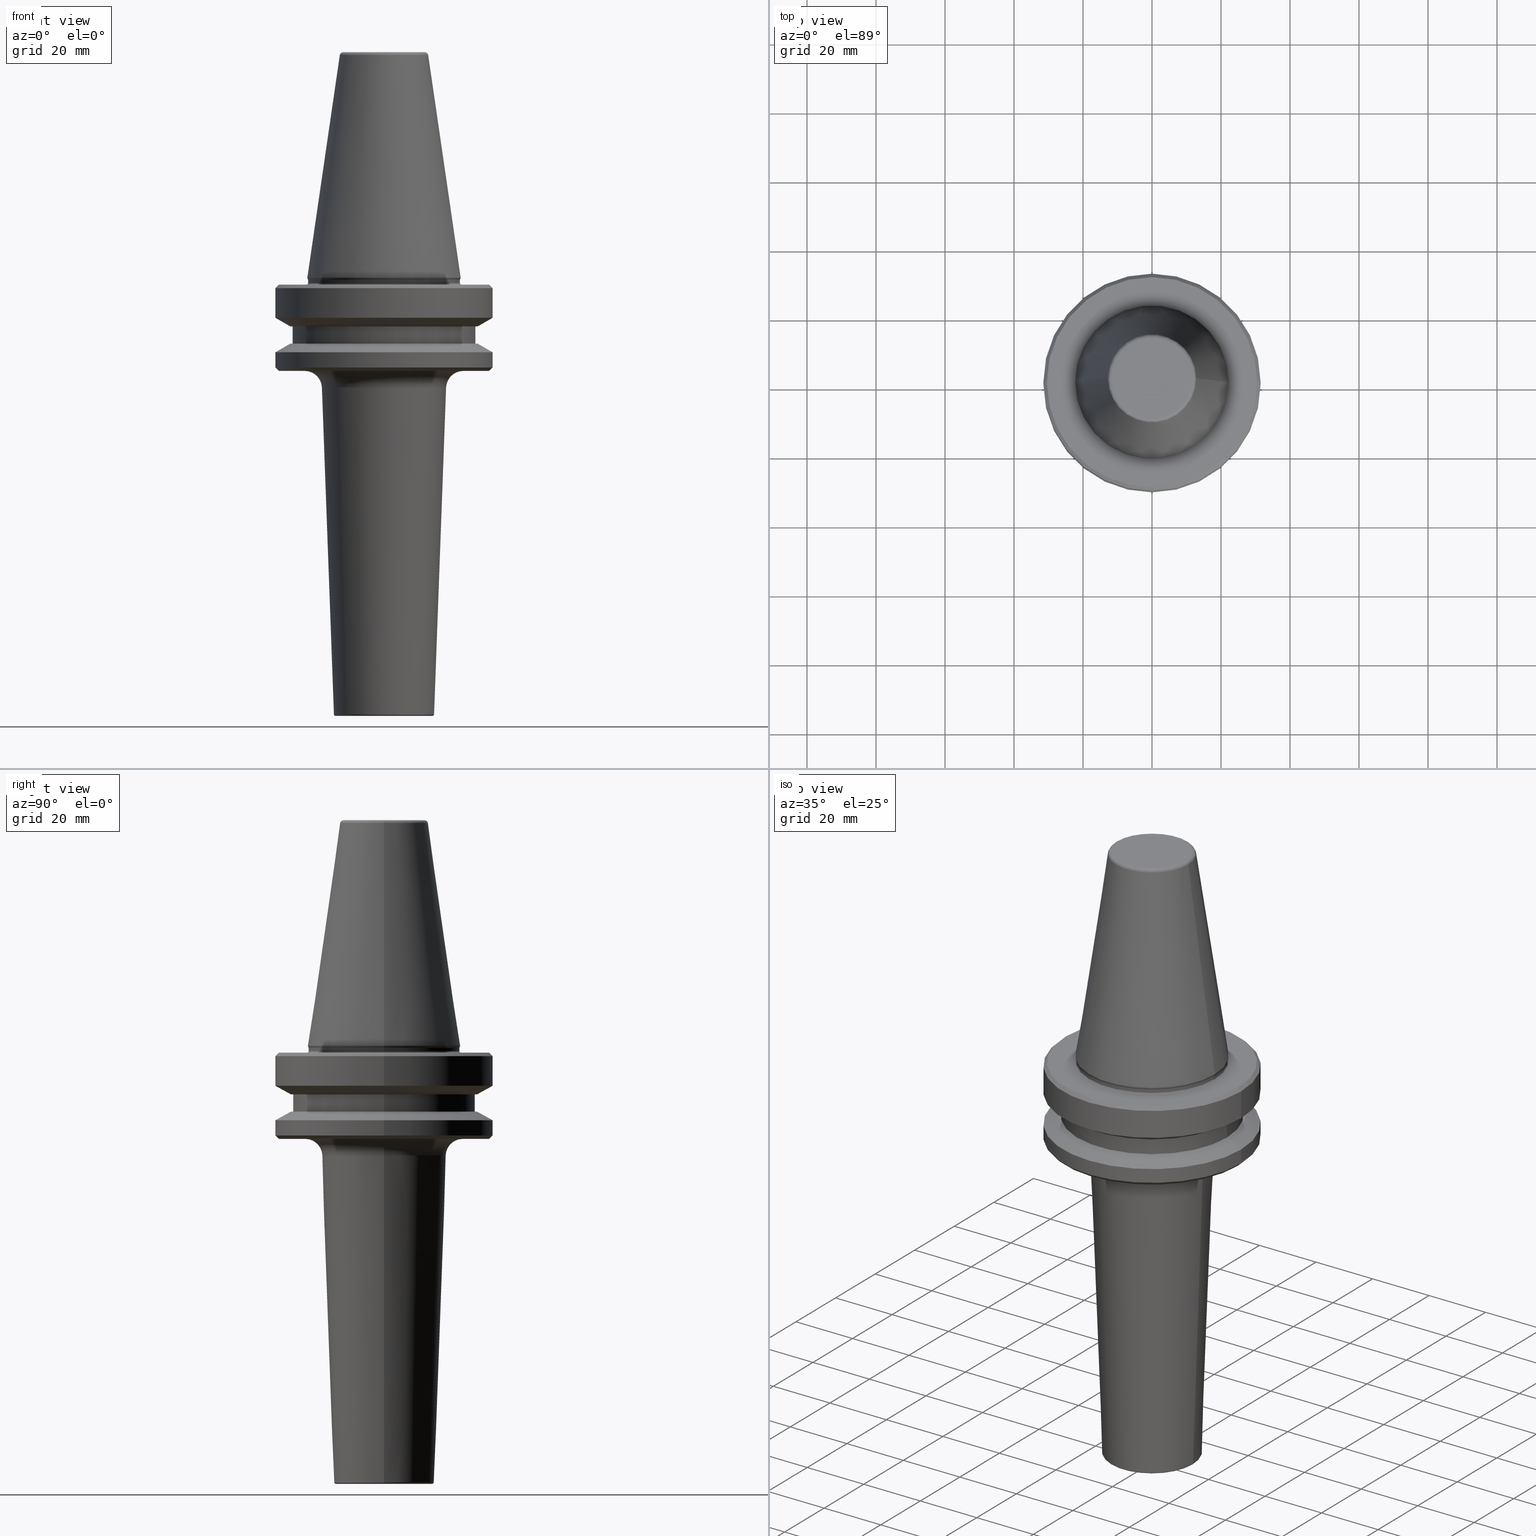
[diagram: canonical four-view strip — front | top / right | iso, engineering-drawing reading convention]
A machine part, canonical four-view strip (front | top / right | iso — engineering-drawing reading convention). The complete STEP part file that produces these views, byte-faithful:
ISO-10303-21;
HEADER;
FILE_DESCRIPTION (( 'STEP AP203' ),
    '1' );
FILE_NAME ('BT40 MCA16 100 AD+B-2.5G 25000 SL.STEP',
    '2019-05-24T10:29:00',
    ( '' ),
    ( '' ),
    'SwSTEP 2.0',
    'SolidWorks 2014',
    '' );
FILE_SCHEMA (( 'CONFIG_CONTROL_DESIGN' ));
ENDSEC;

DATA;
#1 = EDGE_CURVE ( 'NONE', #882, #425, #711, .T. ) ;
#2 = DIRECTION ( 'NONE',  ( 1.000000000000000000, 0.0000000000000000000, 0.0000000000000000000 ) ) ;
#3 = EDGE_LOOP ( 'NONE', ( #15, #834, #323, #17 ) ) ;
#4 = CARTESIAN_POINT ( 'NONE',  ( 0.0000000000000000000, 0.0000000000000000000, -79.50000000000012800 ) ) ;
#5 = CONICAL_SURFACE ( 'NONE', #388, 31.50000000000008500, 1.047197551196587000 ) ;
#6 = LINE ( 'NONE', #830, #239 ) ;
#7 = VERTEX_POINT ( 'NONE', #497 ) ;
#8 = EDGE_CURVE ( 'NONE', #39, #533, #828, .T. ) ;
#9 = DIRECTION ( 'NONE',  ( 0.0000000000000000000, 0.0000000000000000000, -1.000000000000000000 ) ) ;
#10 = AXIS2_PLACEMENT_3D ( 'NONE', #86, #270, #994 ) ;
#11 = PERSON_AND_ORGANIZATION ( #717, #339 ) ;
#12 = CARTESIAN_POINT ( 'NONE',  ( -22.00000000000002100, 2.694222958124179600E-015, 6.357346922996331500 ) ) ;
#13 = PLANE ( 'NONE',  #661 ) ;
#14 = AXIS2_PLACEMENT_3D ( 'NONE', #475, #102, #728 ) ;
#15 = ORIENTED_EDGE ( 'NONE', *, *, #504, .T. ) ;
#16 = CIRCLE ( 'NONE', #417, 31.50000000000008500 ) ;
#17 = ORIENTED_EDGE ( 'NONE', *, *, #409, .F. ) ;
#18 = CARTESIAN_POINT ( 'NONE',  ( -30.49999999999997200, 0.0000000000000000000, -67.40000000000034700 ) ) ;
#19 = DIRECTION ( 'NONE',  ( 0.0000000000000000000, 0.0000000000000000000, -1.000000000000000000 ) ) ;
#20 = CARTESIAN_POINT ( 'NONE',  ( 0.0000000000000000000, 0.0000000000000000000, -84.50000000000068200 ) ) ;
#21 = FACE_OUTER_BOUND ( 'NONE', #206, .T. ) ;
#22 = DIRECTION ( 'NONE',  ( 0.0000000000000000000, -1.000000000000000000, 0.0000000000000000000 ) ) ;
#23 = VECTOR ( 'NONE', #861, 1000.000000000000100 ) ;
#24 = CARTESIAN_POINT ( 'NONE',  ( 0.0000000000000000000, 0.0000000000000000000, -76.99985799368391800 ) ) ;
#25 = DIRECTION ( 'NONE',  ( 1.000000000000000000, 0.0000000000000000000, 0.0000000000000000000 ) ) ;
#26 = CC_DESIGN_SECURITY_CLASSIFICATION ( #808, ( #535 ) ) ;
#27 = DIRECTION ( 'NONE',  ( -0.0000000000000000000, -0.0000000000000000000, 1.000000000000000000 ) ) ;
#28 = ORIENTED_EDGE ( 'NONE', *, *, #62, .T. ) ;
#29 = DIRECTION ( 'NONE',  ( 1.224646799147353200E-016, 1.000000000000000000, 0.0000000000000000000 ) ) ;
#30 = CARTESIAN_POINT ( 'NONE',  ( 22.49999999999996400, 0.0000000000000000000, -67.40000000000034700 ) ) ;
#31 = EDGE_CURVE ( 'NONE', #271, #585, #496, .T. ) ;
#32 = DIRECTION ( 'NONE',  ( 0.0000000000000000000, -0.0000000000000000000, 1.000000000000000000 ) ) ;
#33 = CIRCLE ( 'NONE', #593, 0.9999999999999696900 ) ;
#34 = AXIS2_PLACEMENT_3D ( 'NONE', #100, #27, #444 ) ;
#35 = CARTESIAN_POINT ( 'NONE',  ( -12.81220206925736900, 0.0000000000000000000, -0.8556918111122247000 ) ) ;
#36 = FACE_OUTER_BOUND ( 'NONE', #976, .T. ) ;
#37 = CARTESIAN_POINT ( 'NONE',  ( 22.00000000000002100, 0.0000000000000000000, 6.357346922996331500 ) ) ;
#38 = DIRECTION ( 'NONE',  ( 1.000000000000000000, 0.0000000000000000000, 0.0000000000000000000 ) ) ;
#39 = VERTEX_POINT ( 'NONE', #984 ) ;
#40 = DIRECTION ( 'NONE',  ( 1.000000000000000000, 0.0000000000000000000, 0.0000000000000000000 ) ) ;
#41 = CARTESIAN_POINT ( 'NONE',  ( 0.0000000000000000000, 0.0000000000000000000, -66.90000000000040400 ) ) ;
#42 = SECURITY_CLASSIFICATION_LEVEL ( 'unclassified' ) ;
#43 = AXIS2_PLACEMENT_3D ( 'NONE', #69, #980, #500 ) ;
#44 = COORDINATED_UNIVERSAL_TIME_OFFSET ( 5, 30, .AHEAD. ) ;
#45 = EDGE_CURVE ( 'NONE', #917, #158, #689, .T. ) ;
#46 = VERTEX_POINT ( 'NONE', #508 ) ;
#47 = FACE_OUTER_BOUND ( 'NONE', #436, .T. ) ;
#48 = DIRECTION ( 'NONE',  ( 1.000000000000000000, 0.0000000000000000000, 0.0000000000000000000 ) ) ;
#49 = ORIENTED_EDGE ( 'NONE', *, *, #171, .F. ) ;
#50 = CARTESIAN_POINT ( 'NONE',  ( 31.50000000000008500, 0.0000000000000000000, 6.357346922996331500 ) ) ;
#51 = EDGE_LOOP ( 'NONE', ( #138, #352, #240, #245 ) ) ;
#52 = ORIENTED_EDGE ( 'NONE', *, *, #886, .F. ) ;
#53 = DIRECTION ( 'NONE',  ( -0.0000000000000000000, -0.0000000000000000000, 1.000000000000000000 ) ) ;
#54 = CARTESIAN_POINT ( 'NONE',  ( -14.01804758269452500, 1.716715710244214200E-015, -191.9000000000083300 ) ) ;
#55 = CIRCLE ( 'NONE', #450, 27.16962701892322600 ) ;
#56 = CARTESIAN_POINT ( 'NONE',  ( 0.0000000000000000000, 0.0000000000000000000, -0.8556918111122247000 ) ) ;
#57 = CIRCLE ( 'NONE', #973, 22.49999999999996400 ) ;
#58 = DIRECTION ( 'NONE',  ( -0.0000000000000000000, -0.0000000000000000000, 1.000000000000000000 ) ) ;
#59 = AXIS2_PLACEMENT_3D ( 'NONE', #438, #282, #549 ) ;
#60 = PLANE ( 'NONE',  #397 ) ;
#61 = ORIENTED_EDGE ( 'NONE', *, *, #204, .F. ) ;
#62 = EDGE_CURVE ( 'NONE', #476, #376, #936, .T. ) ;
#63 = CIRCLE ( 'NONE', #280, 11.82266927716813000 ) ;
#64 = CARTESIAN_POINT ( 'NONE',  ( -22.49999999999996400, 2.755455298081540400E-015, -66.90000000000040400 ) ) ;
#65 = CIRCLE ( 'NONE', #863, 14.51770989867008800 ) ;
#66 = DIRECTION ( 'NONE',  ( -0.0000000000000000000, -0.0000000000000000000, 1.000000000000000000 ) ) ;
#67 = EDGE_LOOP ( 'NONE', ( #328, #836, #652, #141 ) ) ;
#68 = ORIENTED_EDGE ( 'NONE', *, *, #719, .T. ) ;
#69 = CARTESIAN_POINT ( 'NONE',  ( 0.0000000000000000000, 0.0000000000000000000, -84.50000000000068200 ) ) ;
#70 = LOCAL_TIME ( 15, 59, 0.0000000000000000000, #294 ) ;
#71 = EDGE_CURVE ( 'NONE', #726, #767, #269, .T. ) ;
#72 = DIRECTION ( 'NONE',  ( 1.000000000000000000, 0.0000000000000000000, 0.0000000000000000000 ) ) ;
#73 = AXIS2_PLACEMENT_3D ( 'NONE', #844, #404, #147 ) ;
#74 = CARTESIAN_POINT ( 'NONE',  ( 0.0000000000000000000, 0.0000000000000000000, -87.00014200631733300 ) ) ;
#75 = ORIENTED_EDGE ( 'NONE', *, *, #995, .F. ) ;
#76 = VECTOR ( 'NONE', #902, 1000.000000000000000 ) ;
#77 = ADVANCED_FACE ( 'NONE', ( #911 ), #453, .T. ) ;
#78 = AXIS2_PLACEMENT_3D ( 'NONE', #513, #29, #478 ) ;
#79 = CONICAL_SURFACE ( 'NONE', #10, 31.50000000000008500, 0.7853981633974500600 ) ;
#80 = ORIENTED_EDGE ( 'NONE', *, *, #883, .F. ) ;
#81 = EDGE_CURVE ( 'NONE', #533, #39, #663, .T. ) ;
#82 = CARTESIAN_POINT ( 'NONE',  ( 18.00000000000000000, 0.0000000000000000000, -97.21626922043127200 ) ) ;
#83 = PRODUCT_RELATED_PRODUCT_CATEGORY ( 'detail', '', ( #502 ) ) ;
#84 = ADVANCED_FACE ( 'NONE', ( #890 ), #426, .T. ) ;
#85 = FACE_OUTER_BOUND ( 'NONE', #462, .T. ) ;
#86 = CARTESIAN_POINT ( 'NONE',  ( 0.0000000000000000000, 0.0000000000000000000, -91.40000000000037500 ) ) ;
#87 = ORIENTED_EDGE ( 'NONE', *, *, #769, .T. ) ;
#88 = AXIS2_PLACEMENT_3D ( 'NONE', #676, #595, #183 ) ;
#89 = EDGE_CURVE ( 'NONE', #7, #1020, #641, .T. ) ;
#90 = CALENDAR_DATE ( 2019, 24, 5 ) ;
#91 = EDGE_CURVE ( 'NONE', #1020, #559, #866, .T. ) ;
#92 = AXIS2_PLACEMENT_3D ( 'NONE', #620, #699, #619 ) ;
#93 = DIRECTION ( 'NONE',  ( 1.000000000000000000, 0.0000000000000000000, 0.0000000000000000000 ) ) ;
#94 = EDGE_CURVE ( 'NONE', #585, #158, #16, .T. ) ;
#95 = EDGE_LOOP ( 'NONE', ( #265, #679, #640, #704 ) ) ;
#96 = DIRECTION ( 'NONE',  ( -0.0000000000000000000, -0.0000000000000000000, 1.000000000000000000 ) ) ;
#97 = LINE ( 'NONE', #134, #916 ) ;
#98 = CARTESIAN_POINT ( 'NONE',  ( 30.49999999999997200, 3.735172737399423600E-015, -67.40000000000034700 ) ) ;
#99 = ORIENTED_EDGE ( 'NONE', *, *, #31, .T. ) ;
#100 = CARTESIAN_POINT ( 'NONE',  ( 0.0000000000000000000, 0.0000000000000000000, -68.40000000000046000 ) ) ;
#101 = ADVANCED_FACE ( 'NONE', ( #47 ), #194, .T. ) ;
#102 = DIRECTION ( 'NONE',  ( 0.0000000000000000000, 0.0000000000000000000, -1.000000000000000000 ) ) ;
#103 = CARTESIAN_POINT ( 'NONE',  ( -26.50000000000019200, 3.245314017740509400E-015, -84.50000000000068200 ) ) ;
#104 = CARTESIAN_POINT ( 'NONE',  ( 0.0000000000000000000, 0.0000000000000000000, -65.95190515433003500 ) ) ;
#105 = AXIS2_PLACEMENT_3D ( 'NONE', #384, #590, #615 ) ;
#106 = DIRECTION ( 'NONE',  ( -1.000000000000000000, 0.0000000000000000000, 0.0000000000000000000 ) ) ;
#107 = EDGE_LOOP ( 'NONE', ( #168, #307, #659, #745 ) ) ;
#108 = CONICAL_SURFACE ( 'NONE', #837, 30.49999999999997200, 0.7853981633974482800 ) ;
#109 = EDGE_CURVE ( 'NONE', #816, #989, #400, .T. ) ;
#110 = DIRECTION ( 'NONE',  ( -1.000000000000000000, 0.0000000000000000000, 0.0000000000000000000 ) ) ;
#111 = ORIENTED_EDGE ( 'NONE', *, *, #181, .F. ) ;
#112 = DIRECTION ( 'NONE',  ( 1.000000000000000000, 0.0000000000000000000, 0.0000000000000000000 ) ) ;
#113 = CYLINDRICAL_SURFACE ( 'NONE', #855, 26.50000000000019200 ) ;
#114 = CARTESIAN_POINT ( 'NONE',  ( 0.0000000000000000000, 0.0000000000000000000, 6.357346922996331500 ) ) ;
#115 = ADVANCED_FACE ( 'NONE', ( #223 ), #1017, .T. ) ;
#116 = PERSON_AND_ORGANIZATION ( #717, #339 ) ;
#117 = CARTESIAN_POINT ( 'NONE',  ( 22.02412295168553100, 0.0000000000000000000, -65.95190515433003500 ) ) ;
#118 = PERSON_AND_ORGANIZATION_ROLE ( 'design_owner' ) ;
#119 = ORIENTED_EDGE ( 'NONE', *, *, #719, .F. ) ;
#120 = DIRECTION ( 'NONE',  ( 0.0000000000000000000, 0.0000000000000000000, -1.000000000000000000 ) ) ;
#121 = DIRECTION ( 'NONE',  ( -0.0000000000000000000, -0.0000000000000000000, 1.000000000000000000 ) ) ;
#122 = EDGE_CURVE ( 'NONE', #989, #314, #300, .T. ) ;
#123 = DATE_TIME_ROLE ( 'classification_date' ) ;
#124 = AXIS2_PLACEMENT_3D ( 'NONE', #56, #969, #672 ) ;
#125 = CARTESIAN_POINT ( 'NONE',  ( 0.0000000000000000000, 0.0000000000000000000, -92.40000000000802100 ) ) ;
#126 = ORIENTED_EDGE ( 'NONE', *, *, #605, .F. ) ;
#127 = LOCAL_TIME ( 15, 59, 0.0000000000000000000, #344 ) ;
#128 = CIRCLE ( 'NONE', #718, 22.00000000000002100 ) ;
#129 = DIRECTION ( 'NONE',  ( 0.7071067811865487900, 0.0000000000000000000, 0.7071067811865463500 ) ) ;
#130 = ORIENTED_EDGE ( 'NONE', *, *, #933, .F. ) ;
#131 = LINE ( 'NONE', #721, #963 ) ;
#132 = ORIENTED_EDGE ( 'NONE', *, *, #135, .T. ) ;
#133 = DIRECTION ( 'NONE',  ( 0.03674615591534997900, 0.0000000000000000000, 0.9993246319517220500 ) ) ;
#134 = CARTESIAN_POINT ( 'NONE',  ( -26.50000000000019200, 3.245314017740509400E-015, 6.357346922996331500 ) ) ;
#135 = EDGE_CURVE ( 'NONE', #997, #499, #833, .T. ) ;
#136 = CARTESIAN_POINT ( 'NONE',  ( 0.0000000000000000000, 0.0000000000000000000, 6.357346922996331500 ) ) ;
#137 = EDGE_CURVE ( 'NONE', #271, #46, #1046, .T. ) ;
#138 = ORIENTED_EDGE ( 'NONE', *, *, #931, .F. ) ;
#139 = FACE_OUTER_BOUND ( 'NONE', #386, .T. ) ;
#140 = CARTESIAN_POINT ( 'NONE',  ( 0.0000000000000000000, 0.0000000000000000000, -76.99985799368391800 ) ) ;
#141 = ORIENTED_EDGE ( 'NONE', *, *, #135, .F. ) ;
#142 = CARTESIAN_POINT ( 'NONE',  ( -31.50000000000008500, 3.857637417314172900E-015, -87.00014200631733300 ) ) ;
#143 = ORIENTED_EDGE ( 'NONE', *, *, #81, .T. ) ;
#144 = LINE ( 'NONE', #50, #971 ) ;
#145 = ADVANCED_FACE ( 'NONE', ( #381 ), #583, .F. ) ;
#146 = AXIS2_PLACEMENT_3D ( 'NONE', #518, #656, #25 ) ;
#147 = DIRECTION ( 'NONE',  ( 1.000000000000000000, 0.0000000000000000000, 0.0000000000000000000 ) ) ;
#148 = ORIENTED_EDGE ( 'NONE', *, *, #553, .F. ) ;
#149 = CARTESIAN_POINT ( 'NONE',  ( 0.0000000000000000000, 0.0000000000000000000, -91.40000000000037500 ) ) ;
#150 = CARTESIAN_POINT ( 'NONE',  ( 0.0000000000000000000, 0.0000000000000000000, -67.40000000000034700 ) ) ;
#151 = ADVANCED_FACE ( 'NONE', ( #611 ), #285, .T. ) ;
#152 = ADVANCED_FACE ( 'NONE', ( #167 ), #903, .T. ) ;
#153 = ORIENTED_EDGE ( 'NONE', *, *, #238, .F. ) ;
#154 = AXIS2_PLACEMENT_3D ( 'NONE', #4, #259, #230 ) ;
#155 = TOROIDAL_SURFACE ( 'NONE', #562, 22.40000000000019800, 0.4000000000001546800 ) ;
#156 = EDGE_CURVE ( 'NONE', #195, #1013, #988, .T. ) ;
#157 = DIRECTION ( 'NONE',  ( -0.0000000000000000000, -0.0000000000000000000, 1.000000000000000000 ) ) ;
#158 = VERTEX_POINT ( 'NONE', #142 ) ;
#159 = EDGE_CURVE ( 'NONE', #882, #905, #466, .T. ) ;
#160 = CARTESIAN_POINT ( 'NONE',  ( -31.50000000000008500, 3.857637417314172900E-015, 6.357346922996331500 ) ) ;
#161 = AXIS2_PLACEMENT_3D ( 'NONE', #1005, #519, #38 ) ;
#162 = CARTESIAN_POINT ( 'NONE',  ( 0.0000000000000000000, 0.0000000000000000000, -192.4000000000080200 ) ) ;
#163 = EDGE_CURVE ( 'NONE', #1013, #195, #65, .T. ) ;
#164 = EDGE_CURVE ( 'NONE', #559, #197, #675, .T. ) ;
#165 = ADVANCED_FACE ( 'NONE', ( #36 ), #626, .T. ) ;
#166 = CARTESIAN_POINT ( 'NONE',  ( 0.0000000000000000000, 0.0000000000000000000, -65.40000000000057400 ) ) ;
#167 = FACE_OUTER_BOUND ( 'NONE', #225, .T. ) ;
#168 = ORIENTED_EDGE ( 'NONE', *, *, #904, .T. ) ;
#169 = DIRECTION ( 'NONE',  ( 1.000000000000000000, 0.0000000000000000000, 0.0000000000000000000 ) ) ;
#170 = ORIENTED_EDGE ( 'NONE', *, *, #1041, .F. ) ;
#171 = EDGE_CURVE ( 'NONE', #46, #158, #6, .T. ) ;
#172 = ORIENTED_EDGE ( 'NONE', *, *, #227, .T. ) ;
#173 = AXIS2_PLACEMENT_3D ( 'NONE', #41, #157, #112 ) ;
#174 = VECTOR ( 'NONE', #878, 1000.000000000000000 ) ;
#175 = VERTEX_POINT ( 'NONE', #708 ) ;
#176 = UNCERTAINTY_MEASURE_WITH_UNIT (LENGTH_MEASURE( 1.000000000000000100E-005 ), #208, 'distance_accuracy_value', 'NONE');
#177 = ADVANCED_FACE ( 'NONE', ( #488 ), #821, .T. ) ;
#178 = DIRECTION ( 'NONE',  ( 1.000000000000000000, 0.0000000000000000000, 0.0000000000000000000 ) ) ;
#179 = VERTEX_POINT ( 'NONE', #638 ) ;
#180 = DIRECTION ( 'NONE',  ( -0.0000000000000000000, -0.0000000000000000000, 1.000000000000000000 ) ) ;
#181 = EDGE_CURVE ( 'NONE', #179, #175, #1035, .T. ) ;
#182 = EDGE_CURVE ( 'NONE', #348, #905, #413, .T. ) ;
#183 = DIRECTION ( 'NONE',  ( 1.000000000000000000, 0.0000000000000000000, 0.0000000000000000000 ) ) ;
#184 = ORIENTED_EDGE ( 'NONE', *, *, #45, .T. ) ;
#185 = ADVANCED_FACE ( 'NONE', ( #658, #851 ), #760, .T. ) ;
#186 = CIRCLE ( 'NONE', #351, 22.99662315975860900 ) ;
#187 = CARTESIAN_POINT ( 'NONE',  ( 0.0000000000000000000, 0.0000000000000000000, -68.40000000000046000 ) ) ;
#188 = AXIS2_PLACEMENT_3D ( 'NONE', #586, #688, #449 ) ;
#189 = ORIENTED_EDGE ( 'NONE', *, *, #81, .F. ) ;
#190 = CARTESIAN_POINT ( 'NONE',  ( 0.0000000000000000000, 0.0000000000000000000, -87.00014200631733300 ) ) ;
#191 = AXIS2_PLACEMENT_3D ( 'NONE', #561, #340, #489 ) ;
#192 = EDGE_CURVE ( 'NONE', #710, #421, #394, .T. ) ;
#193 = CARTESIAN_POINT ( 'NONE',  ( 14.01804758269452500, 0.0000000000000000000, -192.4000000000080200 ) ) ;
#194 = CONICAL_SURFACE ( 'NONE', #472, 22.22499999999993700, 0.3490658503994643600 ) ;
#195 = VERTEX_POINT ( 'NONE', #594 ) ;
#196 = DIRECTION ( 'NONE',  ( 1.000000000000000000, 0.0000000000000000000, 0.0000000000000000000 ) ) ;
#197 = VERTEX_POINT ( 'NONE', #517 ) ;
#198 = DIRECTION ( 'NONE',  ( 1.000000000000000000, 0.0000000000000000000, 0.0000000000000000000 ) ) ;
#199 = ADVANCED_FACE ( 'NONE', ( #1009 ), #329, .T. ) ;
#200 = FACE_OUTER_BOUND ( 'NONE', #416, .T. ) ;
#201 = DIRECTION ( 'NONE',  ( -0.0000000000000000000, -0.0000000000000000000, 1.000000000000000000 ) ) ;
#202 = CIRCLE ( 'NONE', #365, 14.01804758269452500 ) ;
#203 = DIRECTION ( 'NONE',  ( -0.0000000000000000000, -0.0000000000000000000, 1.000000000000000000 ) ) ;
#204 = EDGE_CURVE ( 'NONE', #989, #816, #186, .T. ) ;
#205 = DIRECTION ( 'NONE',  ( -0.0000000000000000000, -0.0000000000000000000, 1.000000000000000000 ) ) ;
#206 = EDGE_LOOP ( 'NONE', ( #874, #226, #637, #695 ) ) ;
#207 = DIRECTION ( 'NONE',  ( -1.000000000000000000, 1.224646799147352200E-016, 0.0000000000000000000 ) ) ;
#208 =( LENGTH_UNIT ( ) NAMED_UNIT ( * ) SI_UNIT ( .MILLI., .METRE. ) );
#209 = TOROIDAL_SURFACE ( 'NONE', #701, 22.40000000000019800, 0.4000000000001546800 ) ;
#210 = APPLICATION_PROTOCOL_DEFINITION ( 'international standard', 'config_control_design', 1994, #680 ) ;
#211 = VECTOR ( 'NONE', #856, 1000.000000000000000 ) ;
#212 = CARTESIAN_POINT ( 'NONE',  ( -18.00000000000000000, 2.510319166422431300E-015, -97.21626922043127200 ) ) ;
#213 = EDGE_LOOP ( 'NONE', ( #261, #429 ) ) ;
#214 = APPROVAL_ROLE ( '' ) ;
#215 = AXIS2_PLACEMENT_3D ( 'NONE', #233, #205, #896 ) ;
#216 = DIRECTION ( 'NONE',  ( 1.000000000000000000, 0.0000000000000000000, 0.0000000000000000000 ) ) ;
#217 = ORIENTED_EDGE ( 'NONE', *, *, #182, .F. ) ;
#218 = EDGE_CURVE ( 'NONE', #39, #726, #440, .T. ) ;
#219 = LOCAL_TIME ( 15, 59, 0.0000000000000000000, #418 ) ;
#220 = CARTESIAN_POINT ( 'NONE',  ( 30.49999999999241900, 0.0000000000000000000, -92.40000000000803500 ) ) ;
#221 = ORIENTED_EDGE ( 'NONE', *, *, #501, .T. ) ;
#222 = DIRECTION ( 'NONE',  ( 1.000000000000000000, 0.0000000000000000000, 0.0000000000000000000 ) ) ;
#223 = FACE_OUTER_BOUND ( 'NONE', #95, .T. ) ;
#224 = CC_DESIGN_PERSON_AND_ORGANIZATION_ASSIGNMENT ( #116, #118, ( #502 ) ) ;
#225 = EDGE_LOOP ( 'NONE', ( #49, #587, #99, #484 ) ) ;
#226 = ORIENTED_EDGE ( 'NONE', *, *, #109, .F. ) ;
#227 = EDGE_CURVE ( 'NONE', #197, #720, #795, .T. ) ;
#228 = CARTESIAN_POINT ( 'NONE',  ( -27.16962701892256100, 0.0000000000000000000, -84.50000000000068200 ) ) ;
#229 = CIRCLE ( 'NONE', #610, 22.49999999999996400 ) ;
#230 = DIRECTION ( 'NONE',  ( 1.000000000000000000, 0.0000000000000000000, 0.0000000000000000000 ) ) ;
#231 = FACE_OUTER_BOUND ( 'NONE', #492, .T. ) ;
#232 = AXIS2_PLACEMENT_3D ( 'NONE', #636, #364, #841 ) ;
#233 = CARTESIAN_POINT ( 'NONE',  ( 0.0000000000000000000, 0.0000000000000000000, -97.21626922043127200 ) ) ;
#234 = EDGE_LOOP ( 'NONE', ( #1018, #597, #525, #256 ) ) ;
#235 = CARTESIAN_POINT ( 'NONE',  ( 0.0000000000000000000, 0.0000000000000000000, -84.50000000000068200 ) ) ;
#236 = ADVANCED_FACE ( 'NONE', ( #372 ), #155, .F. ) ;
#237 = FACE_OUTER_BOUND ( 'NONE', #234, .T. ) ;
#238 = EDGE_CURVE ( 'NONE', #786, #720, #770, .T. ) ;
#239 = VECTOR ( 'NONE', #741, 1000.000000000000000 ) ;
#240 = ORIENTED_EDGE ( 'NONE', *, *, #607, .T. ) ;
#241 = APPROVAL_DATE_TIME ( #446, #584 ) ;
#242 = AXIS2_PLACEMENT_3D ( 'NONE', #104, #670, #198 ) ;
#243 = EDGE_CURVE ( 'NONE', #905, #175, #603, .T. ) ;
#244 = DIRECTION ( 'NONE',  ( -0.0000000000000000000, -0.0000000000000000000, 1.000000000000000000 ) ) ;
#245 = ORIENTED_EDGE ( 'NONE', *, *, #790, .F. ) ;
#246 = ORIENTED_EDGE ( 'NONE', *, *, #713, .F. ) ;
#247 = VECTOR ( 'NONE', #806, 1000.000000000000100 ) ;
#248 = EDGE_LOOP ( 'NONE', ( #515, #143, #606, #246 ) ) ;
#249 = DIRECTION ( 'NONE',  ( -0.0000000000000000000, -0.0000000000000000000, 1.000000000000000000 ) ) ;
#250 = DIRECTION ( 'NONE',  ( 1.000000000000000000, 0.0000000000000000000, 0.0000000000000000000 ) ) ;
#251 = AXIS2_PLACEMENT_3D ( 'NONE', #235, #332, #560 ) ;
#252 = ADVANCED_FACE ( 'NONE', ( #977 ), #782, .T. ) ;
#253 = TOROIDAL_SURFACE ( 'NONE', #555, 22.99662315975860900, 5.000000000000009800 ) ;
#254 = CARTESIAN_POINT ( 'NONE',  ( 0.0000000000000000000, 0.0000000000000000000, -66.90000000000040400 ) ) ;
#255 = CIRCLE ( 'NONE', #412, 27.16962701892256100 ) ;
#256 = ORIENTED_EDGE ( 'NONE', *, *, #268, .F. ) ;
#257 = FACE_OUTER_BOUND ( 'NONE', #794, .T. ) ;
#258 = VECTOR ( 'NONE', #53, 1000.000000000000000 ) ;
#259 = DIRECTION ( 'NONE',  ( -0.0000000000000000000, -0.0000000000000000000, 1.000000000000000000 ) ) ;
#260 = AXIS2_PLACEMENT_3D ( 'NONE', #447, #937, #520 ) ;
#261 = ORIENTED_EDGE ( 'NONE', *, *, #71, .T. ) ;
#262 = DIRECTION ( 'NONE',  ( -0.0000000000000000000, -0.0000000000000000000, 1.000000000000000000 ) ) ;
#263 = APPROVAL_PERSON_ORGANIZATION ( #471, #584, #443 ) ;
#264 = AXIS2_PLACEMENT_3D ( 'NONE', #932, #536, #356 ) ;
#265 = ORIENTED_EDGE ( 'NONE', *, *, #159, .F. ) ;
#266 = DIRECTION ( 'NONE',  ( -1.000000000000000000, 0.0000000000000000000, 0.0000000000000000000 ) ) ;
#267 = ORIENTED_EDGE ( 'NONE', *, *, #900, .F. ) ;
#268 = EDGE_CURVE ( 'NONE', #179, #791, #529, .T. ) ;
#269 = CIRCLE ( 'NONE', #154, 26.50000000000019200 ) ;
#270 = DIRECTION ( 'NONE',  ( -0.0000000000000000000, -0.0000000000000000000, 1.000000000000000000 ) ) ;
#271 = VERTEX_POINT ( 'NONE', #1045 ) ;
#272 = DIRECTION ( 'NONE',  ( -0.0000000000000000000, -0.0000000000000000000, 1.000000000000000000 ) ) ;
#273 = PRODUCT_DEFINITION ( 'UNKNOWN', '', #535, #568 ) ;
#274 = FACE_OUTER_BOUND ( 'NONE', #692, .T. ) ;
#275 = EDGE_CURVE ( 'NONE', #1013, #314, #961, .T. ) ;
#276 = EDGE_CURVE ( 'NONE', #882, #179, #128, .T. ) ;
#277 = CIRCLE ( 'NONE', #926, 0.4999999999996847000 ) ;
#278 = ORIENTED_EDGE ( 'NONE', *, *, #820, .F. ) ;
#279 = CARTESIAN_POINT ( 'NONE',  ( -11.82266927716813000, 1.447859408766170200E-015, -1.000000000000334000 ) ) ;
#280 = AXIS2_PLACEMENT_3D ( 'NONE', #398, #244, #222 ) ;
#281 = CARTESIAN_POINT ( 'NONE',  ( -31.50000000000008500, 3.857637417314172900E-015, -76.99985799368391800 ) ) ;
#282 = DIRECTION ( 'NONE',  ( -0.0000000000000000000, -0.0000000000000000000, 1.000000000000000000 ) ) ;
#283 = TOROIDAL_SURFACE ( 'NONE', #232, 11.82266927716813000, 0.9999999999999696900 ) ;
#284 = DIRECTION ( 'NONE',  ( -0.0000000000000000000, -0.0000000000000000000, 1.000000000000000000 ) ) ;
#285 = CYLINDRICAL_SURFACE ( 'NONE', #912, 22.00000000000002100 ) ;
#286 = CARTESIAN_POINT ( 'NONE',  ( 0.0000000000000000000, 0.0000000000000000000, -67.40000000000034700 ) ) ;
#287 =( NAMED_UNIT ( * ) SI_UNIT ( $, .STERADIAN. ) SOLID_ANGLE_UNIT ( ) );
#288 = ORIENTED_EDGE ( 'NONE', *, *, #485, .T. ) ;
#289 = ORIENTED_EDGE ( 'NONE', *, *, #218, .F. ) ;
#290 = DIRECTION ( 'NONE',  ( -1.000000000000000000, 0.0000000000000000000, 0.0000000000000000000 ) ) ;
#291 = EDGE_CURVE ( 'NONE', #421, #195, #784, .T. ) ;
#292 = APPROVAL_ROLE ( '' ) ;
#293 = CARTESIAN_POINT ( 'NONE',  ( 0.0000000000000000000, 0.0000000000000000000, -65.40000000000057400 ) ) ;
#294 = COORDINATED_UNIVERSAL_TIME_OFFSET ( 5, 30, .AHEAD. ) ;
#295 = DIRECTION ( 'NONE',  ( 0.0000000000000000000, 0.0000000000000000000, -1.000000000000000000 ) ) ;
#296 = DIRECTION ( 'NONE',  ( 1.000000000000000000, 0.0000000000000000000, 0.0000000000000000000 ) ) ;
#297 = DIRECTION ( 'NONE',  ( 0.0000000000000000000, -1.000000000000000000, 0.0000000000000000000 ) ) ;
#298 = ADVANCED_FACE ( 'NONE', ( #325 ), #739, .T. ) ;
#299 = ORIENTED_EDGE ( 'NONE', *, *, #553, .T. ) ;
#300 = CIRCLE ( 'NONE', #635, 5.000000000000011500 ) ;
#301 = CARTESIAN_POINT ( 'NONE',  ( 0.0000000000000000000, 0.0000000000000000000, -92.40000000000803500 ) ) ;
#302 = ORIENTED_EDGE ( 'NONE', *, *, #607, .F. ) ;
#303 = DIRECTION ( 'NONE',  ( -0.0000000000000000000, -0.0000000000000000000, 1.000000000000000000 ) ) ;
#304 = DIRECTION ( 'NONE',  ( 1.000000000000000000, 0.0000000000000000000, 0.0000000000000000000 ) ) ;
#305 = CIRCLE ( 'NONE', #1012, 30.49999999999997200 ) ;
#306 = CARTESIAN_POINT ( 'NONE',  ( 26.50000000000019200, 0.0000000000000000000, -79.50000000000012800 ) ) ;
#307 = ORIENTED_EDGE ( 'NONE', *, *, #625, .T. ) ;
#308 = CARTESIAN_POINT ( 'NONE',  ( 0.0000000000000000000, 0.0000000000000000000, 6.357346922996331500 ) ) ;
#309 = DIRECTION ( 'NONE',  ( -0.0000000000000000000, -0.0000000000000000000, 1.000000000000000000 ) ) ;
#310 = CARTESIAN_POINT ( 'NONE',  ( -30.49999999999241900, 3.796405077356336000E-015, -92.40000000000803500 ) ) ;
#311 = ORIENTED_EDGE ( 'NONE', *, *, #422, .F. ) ;
#312 = TOROIDAL_SURFACE ( 'NONE', #105, 11.82266927716813000, 0.9999999999999696900 ) ;
#313 = DIRECTION ( 'NONE',  ( -0.0000000000000000000, -0.0000000000000000000, 1.000000000000000000 ) ) ;
#314 = VERTEX_POINT ( 'NONE', #212 ) ;
#315 = CYLINDRICAL_SURFACE ( 'NONE', #908, 31.50000000000008500 ) ;
#316 = AXIS2_PLACEMENT_3D ( 'NONE', #150, #798, #361 ) ;
#317 = LOCAL_TIME ( 15, 59, 0.0000000000000000000, #521 ) ;
#318 = CARTESIAN_POINT ( 'NONE',  ( 0.0000000000000000000, 0.0000000000000000000, -79.50000000000012800 ) ) ;
#319 = CARTESIAN_POINT ( 'NONE',  ( 0.0000000000000000000, 0.0000000000000000000, -84.50000000000068200 ) ) ;
#320 = DIRECTION ( 'NONE',  ( 1.000000000000000000, 0.0000000000000000000, 0.0000000000000000000 ) ) ;
#321 = CARTESIAN_POINT ( 'NONE',  ( -22.02412295168553100, 2.697177167680943700E-015, -65.95190515433003500 ) ) ;
#322 = AXIS2_PLACEMENT_3D ( 'NONE', #461, #925, #506 ) ;
#323 = ORIENTED_EDGE ( 'NONE', *, *, #137, .F. ) ;
#324 = CARTESIAN_POINT ( 'NONE',  ( 0.0000000000000000000, 0.0000000000000000000, -66.90000000000040400 ) ) ;
#325 = FACE_OUTER_BOUND ( 'NONE', #662, .T. ) ;
#326 = CARTESIAN_POINT ( 'NONE',  ( -14.51770989867007900, 1.777906695835615800E-015, -191.9183730779660100 ) ) ;
#327 = FACE_OUTER_BOUND ( 'NONE', #3, .T. ) ;
#328 = ORIENTED_EDGE ( 'NONE', *, *, #904, .F. ) ;
#329 = PLANE ( 'NONE',  #399 ) ;
#330 = APPROVAL ( #764, 'UNSPECIFIED' ) ;
#331 = DIRECTION ( 'NONE',  ( -0.3420201433262311000, 4.188538737683878900E-017, 0.9396926207857037000 ) ) ;
#332 = DIRECTION ( 'NONE',  ( 0.0000000000000000000, -0.0000000000000000000, 1.000000000000000000 ) ) ;
#333 = ORIENTED_EDGE ( 'NONE', *, *, #790, .T. ) ;
#334 = FACE_OUTER_BOUND ( 'NONE', #51, .T. ) ;
#335 = DIRECTION ( 'NONE',  ( -0.0000000000000000000, -0.0000000000000000000, 1.000000000000000000 ) ) ;
#336 = AXIS2_PLACEMENT_3D ( 'NONE', #301, #817, #2 ) ;
#337 = ORIENTED_EDGE ( 'NONE', *, *, #291, .F. ) ;
#338 = FACE_OUTER_BOUND ( 'NONE', #846, .T. ) ;
#339 = ORGANIZATION ( 'UNSPECIFIED', 'UNSPECIFIED', '' ) ;
#340 = DIRECTION ( 'NONE',  ( -0.0000000000000000000, -0.0000000000000000000, 1.000000000000000000 ) ) ;
#341 = ORIENTED_EDGE ( 'NONE', *, *, #89, .F. ) ;
#342 = DIRECTION ( 'NONE',  ( -0.0000000000000000000, -0.0000000000000000000, 1.000000000000000000 ) ) ;
#343 = VERTEX_POINT ( 'NONE', #1030 ) ;
#344 = COORDINATED_UNIVERSAL_TIME_OFFSET ( 5, 30, .AHEAD. ) ;
#345 = VECTOR ( 'NONE', #631, 1000.000000000000200 ) ;
#346 = CARTESIAN_POINT ( 'NONE',  ( 0.0000000000000000000, 0.0000000000000000000, 6.357346922996331500 ) ) ;
#347 = AXIS2_PLACEMENT_3D ( 'NONE', #20, #771, #639 ) ;
#348 = VERTEX_POINT ( 'NONE', #321 ) ;
#349 = FACE_OUTER_BOUND ( 'NONE', #452, .T. ) ;
#350 = ORIENTED_EDGE ( 'NONE', *, *, #94, .F. ) ;
#351 = AXIS2_PLACEMENT_3D ( 'NONE', #125, #578, #93 ) ;
#352 = ORIENTED_EDGE ( 'NONE', *, *, #934, .T. ) ;
#353 = FACE_OUTER_BOUND ( 'NONE', #107, .T. ) ;
#354 = EDGE_LOOP ( 'NONE', ( #217, #671, #703, #664 ) ) ;
#355 = DIRECTION ( 'NONE',  ( 0.1443081888881795900, 1.767265616126607700E-017, -0.9895327920891826600 ) ) ;
#356 = DIRECTION ( 'NONE',  ( 1.000000000000000000, 0.0000000000000000000, 0.0000000000000000000 ) ) ;
#357 = ORIENTED_EDGE ( 'NONE', *, *, #762, .T. ) ;
#358 = CARTESIAN_POINT ( 'NONE',  ( 0.0000000000000000000, 0.0000000000000000000, -79.50000000000012800 ) ) ;
#359 = CIRCLE ( 'NONE', #681, 30.49999999999997200 ) ;
#360 = CARTESIAN_POINT ( 'NONE',  ( 31.50000000000008500, 0.0000000000000000000, 6.357346922996331500 ) ) ;
#361 = DIRECTION ( 'NONE',  ( -1.000000000000000000, 0.0000000000000000000, -0.0000000000000000000 ) ) ;
#362 = APPLICATION_PROTOCOL_DEFINITION ( 'international standard', 'config_control_design', 1994, #439 ) ;
#363 = ORIENTED_EDGE ( 'NONE', *, *, #137, .T. ) ;
#364 = DIRECTION ( 'NONE',  ( -0.0000000000000000000, -0.0000000000000000000, 1.000000000000000000 ) ) ;
#365 = AXIS2_PLACEMENT_3D ( 'NONE', #162, #393, #854 ) ;
#366 = CARTESIAN_POINT ( 'NONE',  ( 0.0000000000000000000, 0.0000000000000000000, -66.08871321165987900 ) ) ;
#367 = DIRECTION ( 'NONE',  ( -0.0000000000000000000, -0.0000000000000000000, 1.000000000000000000 ) ) ;
#368 = DATE_TIME_ROLE ( 'creation_date' ) ;
#369 = DIRECTION ( 'NONE',  ( -0.0000000000000000000, -0.0000000000000000000, 1.000000000000000000 ) ) ;
#370 = DIRECTION ( 'NONE',  ( 1.000000000000000000, 0.0000000000000000000, 0.0000000000000000000 ) ) ;
#371 = ORIENTED_EDGE ( 'NONE', *, *, #45, .F. ) ;
#372 = FACE_OUTER_BOUND ( 'NONE', #1047, .T. ) ;
#373 = DIRECTION ( 'NONE',  ( 1.000000000000000000, 0.0000000000000000000, 0.0000000000000000000 ) ) ;
#374 = AXIS2_PLACEMENT_3D ( 'NONE', #435, #848, #622 ) ;
#375 = DIRECTION ( 'NONE',  ( 1.000000000000000000, 0.0000000000000000000, 0.0000000000000000000 ) ) ;
#376 = VERTEX_POINT ( 'NONE', #753 ) ;
#377 = DIRECTION ( 'NONE',  ( 1.000000000000000000, 0.0000000000000000000, 0.0000000000000000000 ) ) ;
#378 = CARTESIAN_POINT ( 'NONE',  ( 0.0000000000000000000, 0.0000000000000000000, -97.21626922043127200 ) ) ;
#379 = CC_DESIGN_APPROVAL ( #330, ( #273 ) ) ;
#380 = ADVANCED_FACE ( 'NONE', ( #139 ), #108, .T. ) ;
#381 = FACE_OUTER_BOUND ( 'NONE', #899, .T. ) ;
#382 = EDGE_LOOP ( 'NONE', ( #951, #805, #621, #579 ) ) ;
#383 = MANIFOLD_SOLID_BREP ( 'Revolve1', #1044 ) ;
#384 = CARTESIAN_POINT ( 'NONE',  ( 0.0000000000000000000, 0.0000000000000000000, -1.000000000000334000 ) ) ;
#385 = ORIENTED_EDGE ( 'NONE', *, *, #227, .F. ) ;
#386 = EDGE_LOOP ( 'NONE', ( #697, #687, #68, #415 ) ) ;
#387 = DIRECTION ( 'NONE',  ( 1.000000000000000000, 0.0000000000000000000, 0.0000000000000000000 ) ) ;
#388 = AXIS2_PLACEMENT_3D ( 'NONE', #538, #402, #1050 ) ;
#389 = CIRCLE ( 'NONE', #522, 31.50000000000008500 ) ;
#390 = ORIENTED_EDGE ( 'NONE', *, *, #707, .T. ) ;
#391 = CARTESIAN_POINT ( 'NONE',  ( 31.50000000000008500, 0.0000000000000000000, -91.40000000000037500 ) ) ;
#392 = ORIENTED_EDGE ( 'NONE', *, *, #900, .T. ) ;
#393 = DIRECTION ( 'NONE',  ( -0.0000000000000000000, -0.0000000000000000000, 1.000000000000000000 ) ) ;
#394 = CIRCLE ( 'NONE', #191, 14.01804758269452500 ) ;
#395 = EDGE_CURVE ( 'NONE', #343, #376, #540, .T. ) ;
#396 = ORIENTED_EDGE ( 'NONE', *, *, #91, .T. ) ;
#397 = AXIS2_PLACEMENT_3D ( 'NONE', #1019, #666, #457 ) ;
#398 = CARTESIAN_POINT ( 'NONE',  ( 0.0000000000000000000, 0.0000000000000000000, -4.440892098500626200E-013 ) ) ;
#399 = AXIS2_PLACEMENT_3D ( 'NONE', #510, #943, #972 ) ;
#400 = CIRCLE ( 'NONE', #528, 22.99662315975860900 ) ;
#401 = VERTEX_POINT ( 'NONE', #881 ) ;
#402 = DIRECTION ( 'NONE',  ( 0.0000000000000000000, 0.0000000000000000000, -1.000000000000000000 ) ) ;
#403 = EDGE_LOOP ( 'NONE', ( #221, #28 ) ) ;
#404 = DIRECTION ( 'NONE',  ( -0.0000000000000000000, -0.0000000000000000000, 1.000000000000000000 ) ) ;
#405 = CONICAL_SURFACE ( 'NONE', #88, 31.50000000000008500, 1.047197551196597400 ) ;
#406 = ADVANCED_FACE ( 'NONE', ( #749 ), #512, .T. ) ;
#407 = VERTEX_POINT ( 'NONE', #310 ) ;
#408 = DIRECTION ( 'NONE',  ( -0.0000000000000000000, -0.0000000000000000000, 1.000000000000000000 ) ) ;
#409 = EDGE_CURVE ( 'NONE', #773, #271, #722, .T. ) ;
#410 = FACE_OUTER_BOUND ( 'NONE', #354, .T. ) ;
#411 = CARTESIAN_POINT ( 'NONE',  ( 31.50000000000008500, 0.0000000000000000000, -68.40000000000046000 ) ) ;
#412 = AXIS2_PLACEMENT_3D ( 'NONE', #319, #408, #746 ) ;
#413 = CIRCLE ( 'NONE', #78, 0.4000000000001536800 ) ;
#414 = CARTESIAN_POINT ( 'NONE',  ( -14.01804758269452500, 1.747311203039914500E-015, -192.4000000000080200 ) ) ;
#415 = ORIENTED_EDGE ( 'NONE', *, *, #849, .F. ) ;
#416 = EDGE_LOOP ( 'NONE', ( #341, #75 ) ) ;
#417 = AXIS2_PLACEMENT_3D ( 'NONE', #758, #996, #1036 ) ;
#418 = COORDINATED_UNIVERSAL_TIME_OFFSET ( 5, 30, .AHEAD. ) ;
#419 = DIRECTION ( 'NONE',  ( 1.000000000000000000, 0.0000000000000000000, 0.0000000000000000000 ) ) ;
#420 = CARTESIAN_POINT ( 'NONE',  ( -12.81220206925736900, 0.0000000000000000000, -0.8556918111122247000 ) ) ;
#421 = VERTEX_POINT ( 'NONE', #193 ) ;
#422 = EDGE_CURVE ( 'NONE', #776, #175, #564, .T. ) ;
#423 = CARTESIAN_POINT ( 'NONE',  ( 0.0000000000000000000, -1.708974000301187800E-013, -92.40000000000803500 ) ) ;
#424 = DIRECTION ( 'NONE',  ( 0.0000000000000000000, 0.0000000000000000000, -1.000000000000000000 ) ) ;
#425 = VERTEX_POINT ( 'NONE', #1026 ) ;
#426 = CONICAL_SURFACE ( 'NONE', #215, 18.00000000000000000, 0.03675443054396179000 ) ;
#427 = VERTEX_POINT ( 'NONE', #772 ) ;
#428 = CC_DESIGN_PERSON_AND_ORGANIZATION_ASSIGNMENT ( #494, #852, ( #273 ) ) ;
#429 = ORIENTED_EDGE ( 'NONE', *, *, #713, .T. ) ;
#430 = DIRECTION ( 'NONE',  ( 0.0000000000000000000, 0.0000000000000000000, -1.000000000000000000 ) ) ;
#431 = FACE_BOUND ( 'NONE', #748, .T. ) ;
#432 = LINE ( 'NONE', #939, #174 ) ;
#433 = ADVANCED_FACE ( 'NONE', ( #353 ), #312, .T. ) ;
#434 = AXIS2_PLACEMENT_3D ( 'NONE', #922, #952, #196 ) ;
#435 = CARTESIAN_POINT ( 'NONE',  ( 0.0000000000000000000, 0.0000000000000000000, -79.50000000000012800 ) ) ;
#436 = EDGE_LOOP ( 'NONE', ( #864, #1001, #52, #302 ) ) ;
#437 = TOROIDAL_SURFACE ( 'NONE', #486, 22.49999999999996400, 0.4999999999999449300 ) ;
#438 = CARTESIAN_POINT ( 'NONE',  ( 0.0000000000000000000, 0.0000000000000000000, -65.40000000000057400 ) ) ;
#439 = APPLICATION_CONTEXT ( 'configuration controlled 3d designs of mechanical parts and assemblies' ) ;
#440 = LINE ( 'NONE', #677, #577 ) ;
#441 = ORIENTED_EDGE ( 'NONE', *, *, #933, .T. ) ;
#442 = CARTESIAN_POINT ( 'NONE',  ( 0.0000000000000000000, 0.0000000000000000000, -65.95190515433003500 ) ) ;
#443 = APPROVAL_ROLE ( '' ) ;
#444 = DIRECTION ( 'NONE',  ( 1.000000000000000000, 0.0000000000000000000, 0.0000000000000000000 ) ) ;
#445 = CARTESIAN_POINT ( 'NONE',  ( 22.99662315975860900, 0.0000000000000000000, -97.40000000000803500 ) ) ;
#446 = DATE_AND_TIME ( #660, #885 ) ;
#447 = CARTESIAN_POINT ( 'NONE',  ( 0.0000000000000000000, 0.0000000000000000000, -66.90000000000040400 ) ) ;
#448 = ORIENTED_EDGE ( 'NONE', *, *, #921, .T. ) ;
#449 = DIRECTION ( 'NONE',  ( 1.000000000000000000, 0.0000000000000000000, 0.0000000000000000000 ) ) ;
#450 = AXIS2_PLACEMENT_3D ( 'NONE', #318, #970, #178 ) ;
#451 = DIRECTION ( 'NONE',  ( -0.0000000000000000000, -0.0000000000000000000, 1.000000000000000000 ) ) ;
#452 = EDGE_LOOP ( 'NONE', ( #974, #576, #981, #385 ) ) ;
#453 = CYLINDRICAL_SURFACE ( 'NONE', #322, 26.50000000000019200 ) ;
#454 = ORIENTED_EDGE ( 'NONE', *, *, #182, .T. ) ;
#455 = AXIS2_PLACEMENT_3D ( 'NONE', #187, #262, #732 ) ;
#456 = CARTESIAN_POINT ( 'NONE',  ( 31.50000000000008500, 0.0000000000000000000, -87.00014200631733300 ) ) ;
#457 = DIRECTION ( 'NONE',  ( -1.000000000000000000, 0.0000000000000000000, -0.0000000000000000000 ) ) ;
#458 = FACE_OUTER_BOUND ( 'NONE', #403, .T. ) ;
#459 = CONICAL_SURFACE ( 'NONE', #815, 31.50000000000008500, 1.047197551196597400 ) ;
#460 = ORIENTED_EDGE ( 'NONE', *, *, #987, .T. ) ;
#461 = CARTESIAN_POINT ( 'NONE',  ( 0.0000000000000000000, 0.0000000000000000000, 6.357346922996331500 ) ) ;
#462 = EDGE_LOOP ( 'NONE', ( #1031, #548, #983, #390 ) ) ;
#463 = CARTESIAN_POINT ( 'NONE',  ( 0.0000000000000000000, 0.0000000000000000000, -66.08871321165987900 ) ) ;
#464 = CARTESIAN_POINT ( 'NONE',  ( 0.0000000000000000000, 0.0000000000000000000, 6.357346922996331500 ) ) ;
#465 = CIRCLE ( 'NONE', #542, 18.00000000000000000 ) ;
#466 = LINE ( 'NONE', #12, #258 ) ;
#467 = CARTESIAN_POINT ( 'NONE',  ( 0.0000000000000000000, 0.0000000000000000000, -191.9000000000083300 ) ) ;
#468 = EDGE_LOOP ( 'NONE', ( #642, #910, #1049, #731 ) ) ;
#469 = ORIENTED_EDGE ( 'NONE', *, *, #814, .F. ) ;
#470 = AXIS2_PLACEMENT_3D ( 'NONE', #293, #556, #609 ) ;
#471 = PERSON_AND_ORGANIZATION ( #717, #339 ) ;
#472 = AXIS2_PLACEMENT_3D ( 'NONE', #166, #201, #48 ) ;
#473 = ORIENTED_EDGE ( 'NONE', *, *, #8, .F. ) ;
#474 = VECTOR ( 'NONE', #825, 1000.000000000000000 ) ;
#475 = CARTESIAN_POINT ( 'NONE',  ( 0.0000000000000000000, 0.0000000000000000000, -67.40000000000034700 ) ) ;
#476 = VERTEX_POINT ( 'NONE', #581 ) ;
#477 = DIRECTION ( 'NONE',  ( 1.000000000000000000, 0.0000000000000000000, 0.0000000000000000000 ) ) ;
#478 = DIRECTION ( 'NONE',  ( -1.000000000000000000, 1.224646799147357600E-016, 0.0000000000000000000 ) ) ;
#479 = CIRCLE ( 'NONE', #242, 22.02412295168554100 ) ;
#480 = CC_DESIGN_DATE_AND_TIME_ASSIGNMENT ( #683, #368, ( #273 ) ) ;
#481 = DIRECTION ( 'NONE',  ( -0.0000000000000000000, -0.0000000000000000000, 1.000000000000000000 ) ) ;
#482 = CIRCLE ( 'NONE', #1032, 26.50000000000019200 ) ;
#483 = DIRECTION ( 'NONE',  ( 1.000000000000000000, 0.0000000000000000000, 0.0000000000000000000 ) ) ;
#484 = ORIENTED_EDGE ( 'NONE', *, *, #792, .F. ) ;
#485 = EDGE_CURVE ( 'NONE', #195, #736, #924, .T. ) ;
#486 = AXIS2_PLACEMENT_3D ( 'NONE', #254, #272, #1054 ) ;
#487 = FACE_OUTER_BOUND ( 'NONE', #965, .T. ) ;
#488 = FACE_OUTER_BOUND ( 'NONE', #958, .T. ) ;
#489 = DIRECTION ( 'NONE',  ( 1.000000000000000000, 0.0000000000000000000, 0.0000000000000000000 ) ) ;
#490 = ADVANCED_FACE ( 'NONE', ( #85 ), #968, .F. ) ;
#491 = ORIENTED_EDGE ( 'NONE', *, *, #409, .T. ) ;
#492 = EDGE_LOOP ( 'NONE', ( #799, #396, #678, #616 ) ) ;
#493 = ADVANCED_FACE ( 'NONE', ( #487 ), #283, .T. ) ;
#494 = PERSON_AND_ORGANIZATION ( #717, #339 ) ;
#495 = ORIENTED_EDGE ( 'NONE', *, *, #811, .F. ) ;
#496 = LINE ( 'NONE', #360, #76 ) ;
#497 = CARTESIAN_POINT ( 'NONE',  ( 27.16962701892322600, 0.0000000000000000000, -79.50000000000012800 ) ) ;
#498 = ADVANCED_FACE ( 'NONE', ( #334 ), #879, .T. ) ;
#499 = VERTEX_POINT ( 'NONE', #1000 ) ;
#500 = DIRECTION ( 'NONE',  ( 1.000000000000000000, 0.0000000000000000000, 0.0000000000000000000 ) ) ;
#501 = EDGE_CURVE ( 'NONE', #376, #476, #63, .T. ) ;
#502 = PRODUCT ( 'BT40 MCA16 100 AD+B-2.5G 25000 SL', 'BT40 MCA16 100 AD+B-2.5G 25000 SL', '', ( #599 ) ) ;
#503 = LINE ( 'NONE', #1011, #715 ) ;
#504 = EDGE_CURVE ( 'NONE', #773, #407, #901, .T. ) ;
#505 = ORIENTED_EDGE ( 'NONE', *, *, #204, .T. ) ;
#506 = DIRECTION ( 'NONE',  ( 1.000000000000000000, 0.0000000000000000000, 0.0000000000000000000 ) ) ;
#507 = AXIS2_PLACEMENT_3D ( 'NONE', #366, #66, #216 ) ;
#508 = CARTESIAN_POINT ( 'NONE',  ( -31.50000000000008500, 3.857637417314172900E-015, -91.40000000000037500 ) ) ;
#509 = DIRECTION ( 'NONE',  ( -0.0000000000000000000, -0.0000000000000000000, 1.000000000000000000 ) ) ;
#510 = CARTESIAN_POINT ( 'NONE',  ( 0.0000000000000000000, 0.0000000000000000000, -192.4000000000080200 ) ) ;
#511 = ORIENTED_EDGE ( 'NONE', *, *, #1038, .F. ) ;
#512 = CONICAL_SURFACE ( 'NONE', #990, 31.50000000000008500, 1.047197551196587000 ) ;
#513 = CARTESIAN_POINT ( 'NONE',  ( -22.40000000000019800, 2.743208830090095500E-015, -66.08871321165987900 ) ) ;
#514 = DIRECTION ( 'NONE',  ( -0.0000000000000000000, -0.0000000000000000000, 1.000000000000000000 ) ) ;
#515 = ORIENTED_EDGE ( 'NONE', *, *, #921, .F. ) ;
#516 = ADVANCED_FACE ( 'NONE', ( #257 ), #5, .T. ) ;
#517 = CARTESIAN_POINT ( 'NONE',  ( -31.50000000000008500, 3.857637417314172900E-015, -68.40000000000046000 ) ) ;
#518 = CARTESIAN_POINT ( 'NONE',  ( 0.0000000000000000000, 0.0000000000000000000, -97.21626922043127200 ) ) ;
#519 = DIRECTION ( 'NONE',  ( 0.0000000000000000000, 0.0000000000000000000, 1.000000000000000000 ) ) ;
#520 = DIRECTION ( 'NONE',  ( 1.000000000000000000, 0.0000000000000000000, 0.0000000000000000000 ) ) ;
#521 = COORDINATED_UNIVERSAL_TIME_OFFSET ( 5, 30, .AHEAD. ) ;
#522 = AXIS2_PLACEMENT_3D ( 'NONE', #74, #643, #835 ) ;
#523 = ORIENTED_EDGE ( 'NONE', *, *, #975, .F. ) ;
#524 = PERSON_AND_ORGANIZATION_ROLE ( 'design_supplier' ) ;
#525 = ORIENTED_EDGE ( 'NONE', *, *, #1038, .T. ) ;
#526 = ORIENTED_EDGE ( 'NONE', *, *, #71, .F. ) ;
#527 = APPROVAL_DATE_TIME ( #737, #966 ) ;
#528 = AXIS2_PLACEMENT_3D ( 'NONE', #756, #284, #673 ) ;
#529 = CIRCLE ( 'NONE', #668, 0.4999999999999449300 ) ;
#530 = DIRECTION ( 'NONE',  ( 1.000000000000000000, 0.0000000000000000000, 0.0000000000000000000 ) ) ;
#531 = LINE ( 'NONE', #843, #894 ) ;
#532 = DIRECTION ( 'NONE',  ( -0.0000000000000000000, -0.0000000000000000000, 1.000000000000000000 ) ) ;
#533 = VERTEX_POINT ( 'NONE', #103 ) ;
#534 = DIRECTION ( 'NONE',  ( 0.0000000000000000000, -1.000000000000000000, 0.0000000000000000000 ) ) ;
#535 = PRODUCT_DEFINITION_FORMATION_WITH_SPECIFIED_SOURCE ( 'ANY', '', #502, .NOT_KNOWN. ) ;
#536 = DIRECTION ( 'NONE',  ( -0.0000000000000000000, -0.0000000000000000000, 1.000000000000000000 ) ) ;
#537 = ADVANCED_FACE ( 'NONE', ( #237 ), #437, .F. ) ;
#538 = CARTESIAN_POINT ( 'NONE',  ( 0.0000000000000000000, 0.0000000000000000000, -87.00014200631733300 ) ) ;
#539 = ORIENTED_EDGE ( 'NONE', *, *, #164, .T. ) ;
#540 = CIRCLE ( 'NONE', #944, 0.9999999999999696900 ) ;
#541 = DIRECTION ( 'NONE',  ( 1.000000000000000000, 0.0000000000000000000, 0.0000000000000000000 ) ) ;
#542 = AXIS2_PLACEMENT_3D ( 'NONE', #378, #180, #373 ) ;
#543 = CARTESIAN_POINT ( 'NONE',  ( 0.0000000000000000000, 0.0000000000000000000, -76.99985799368391800 ) ) ;
#544 = ORIENTED_EDGE ( 'NONE', *, *, #693, .F. ) ;
#545 = DIRECTION ( 'NONE',  ( -0.0000000000000000000, -0.0000000000000000000, 1.000000000000000000 ) ) ;
#546 = LINE ( 'NONE', #18, #757 ) ;
#547 = DIRECTION ( 'NONE',  ( 0.0000000000000000000, 0.0000000000000000000, -1.000000000000000000 ) ) ;
#548 = ORIENTED_EDGE ( 'NONE', *, *, #762, .F. ) ;
#549 = DIRECTION ( 'NONE',  ( 1.000000000000000000, 0.0000000000000000000, 0.0000000000000000000 ) ) ;
#550 = ORIENTED_EDGE ( 'NONE', *, *, #159, .T. ) ;
#551 = APPROVAL_PERSON_ORGANIZATION ( #768, #966, #214 ) ;
#552 = VECTOR ( 'NONE', #946, 1000.000000000000000 ) ;
#553 = EDGE_CURVE ( 'NONE', #407, #773, #657, .T. ) ;
#554 = CARTESIAN_POINT ( 'NONE',  ( -31.50000000000008500, 0.0000000000000000000, -87.00014200631733300 ) ) ;
#555 = AXIS2_PLACEMENT_3D ( 'NONE', #915, #58, #320 ) ;
#556 = DIRECTION ( 'NONE',  ( -0.0000000000000000000, -0.0000000000000000000, 1.000000000000000000 ) ) ;
#557 = ORIENTED_EDGE ( 'NONE', *, *, #156, .F. ) ;
#558 = CIRCLE ( 'NONE', #733, 22.22499999999993700 ) ;
#559 = VERTEX_POINT ( 'NONE', #832 ) ;
#560 = DIRECTION ( 'NONE',  ( 1.000000000000000000, 0.0000000000000000000, 0.0000000000000000000 ) ) ;
#561 = CARTESIAN_POINT ( 'NONE',  ( 0.0000000000000000000, 0.0000000000000000000, -192.4000000000080200 ) ) ;
#562 = AXIS2_PLACEMENT_3D ( 'NONE', #1015, #342, #788 ) ;
#563 = VERTEX_POINT ( 'NONE', #763 ) ;
#564 = CIRCLE ( 'NONE', #1053, 0.4000000000001502400 ) ;
#565 = ORIENTED_EDGE ( 'NONE', *, *, #769, .F. ) ;
#566 = ORIENTED_EDGE ( 'NONE', *, *, #698, .T. ) ;
#567 = CARTESIAN_POINT ( 'NONE',  ( 22.99662315975860900, 0.0000000000000000000, -92.40000000000803500 ) ) ;
#568 = DESIGN_CONTEXT ( 'detailed design', #680, 'design' ) ;
#569 = CARTESIAN_POINT ( 'NONE',  ( -22.00000000000002100, 2.694222958124179600E-015, -66.08871321165987900 ) ) ;
#570 = FACE_OUTER_BOUND ( 'NONE', #876, .T. ) ;
#571 = DIRECTION ( 'NONE',  ( 0.0000000000000000000, -0.0000000000000000000, 1.000000000000000000 ) ) ;
#572 = CARTESIAN_POINT ( 'NONE',  ( -18.00000000000000000, 2.204364238465235400E-015, -97.21626922043127200 ) ) ;
#573 = CARTESIAN_POINT ( 'NONE',  ( 14.01804758269452500, 0.0000000000000000000, -191.9000000000083300 ) ) ;
#574 = EDGE_LOOP ( 'NONE', ( #800, #613, #1007, #371 ) ) ;
#575 = AXIS2_PLACEMENT_3D ( 'NONE', #445, #297, #430 ) ;
#576 = ORIENTED_EDGE ( 'NONE', *, *, #647, .T. ) ;
#577 = VECTOR ( 'NONE', #1048, 1000.000000000000000 ) ;
#578 = DIRECTION ( 'NONE',  ( -0.0000000000000000000, -0.0000000000000000000, 1.000000000000000000 ) ) ;
#579 = ORIENTED_EDGE ( 'NONE', *, *, #647, .F. ) ;
#580 = AXIS2_PLACEMENT_3D ( 'NONE', #149, #913, #377 ) ;
#581 = CARTESIAN_POINT ( 'NONE',  ( -11.82266927716813000, 1.508450817090336800E-015, -4.440892098500626200E-013 ) ) ;
#582 = CARTESIAN_POINT ( 'NONE',  ( -26.50000000000019200, 3.245314017740509400E-015, -79.50000000000012800 ) ) ;
#583 = TOROIDAL_SURFACE ( 'NONE', #802, 22.99662315975860900, 5.000000000000009800 ) ;
#584 = APPROVAL ( #930, 'UNSPECIFIED' ) ;
#585 = VERTEX_POINT ( 'NONE', #456 ) ;
#586 = CARTESIAN_POINT ( 'NONE',  ( 0.0000000000000000000, 0.0000000000000000000, -0.8556918111122247000 ) ) ;
#587 = ORIENTED_EDGE ( 'NONE', *, *, #814, .T. ) ;
#588 = ORIENTED_EDGE ( 'NONE', *, *, #31, .F. ) ;
#589 = DIRECTION ( 'NONE',  ( 1.224646799147353200E-016, 1.000000000000000000, 0.0000000000000000000 ) ) ;
#590 = DIRECTION ( 'NONE',  ( -0.0000000000000000000, -0.0000000000000000000, 1.000000000000000000 ) ) ;
#591 = ORIENTED_EDGE ( 'NONE', *, *, #109, .T. ) ;
#592 = FACE_OUTER_BOUND ( 'NONE', #941, .T. ) ;
#593 = AXIS2_PLACEMENT_3D ( 'NONE', #279, #589, #598 ) ;
#594 = CARTESIAN_POINT ( 'NONE',  ( 14.51770989867007900, 0.0000000000000000000, -191.9183730779660100 ) ) ;
#595 = DIRECTION ( 'NONE',  ( -0.0000000000000000000, -0.0000000000000000000, 1.000000000000000000 ) ) ;
#596 = DIRECTION ( 'NONE',  ( 1.000000000000000000, 0.0000000000000000000, 0.0000000000000000000 ) ) ;
#597 = ORIENTED_EDGE ( 'NONE', *, *, #1, .T. ) ;
#598 = DIRECTION ( 'NONE',  ( -1.000000000000000000, 1.224646799147353000E-016, 0.0000000000000000000 ) ) ;
#599 = MECHANICAL_CONTEXT ( 'NONE', #439, 'mechanical' ) ;
#600 = CARTESIAN_POINT ( 'NONE',  ( 0.0000000000000000000, 0.0000000000000000000, -91.40000000000037500 ) ) ;
#601 = DIRECTION ( 'NONE',  ( 1.000000000000000000, 0.0000000000000000000, 0.0000000000000000000 ) ) ;
#602 = ORIENTED_EDGE ( 'NONE', *, *, #485, .F. ) ;
#603 = CIRCLE ( 'NONE', #507, 22.00000000000002100 ) ;
#604 = PERSON_AND_ORGANIZATION_ROLE ( 'classification_officer' ) ;
#605 = EDGE_CURVE ( 'NONE', #314, #736, #465, .T. ) ;
#606 = ORIENTED_EDGE ( 'NONE', *, *, #218, .T. ) ;
#607 = EDGE_CURVE ( 'NONE', #776, #563, #674, .T. ) ;
#608 = DIRECTION ( 'NONE',  ( -0.0000000000000000000, -0.0000000000000000000, 1.000000000000000000 ) ) ;
#609 = DIRECTION ( 'NONE',  ( 1.000000000000000000, 0.0000000000000000000, 0.0000000000000000000 ) ) ;
#610 = AXIS2_PLACEMENT_3D ( 'NONE', #810, #797, #250 ) ;
#611 = FACE_OUTER_BOUND ( 'NONE', #754, .T. ) ;
#612 = CARTESIAN_POINT ( 'NONE',  ( 0.0000000000000000000, 0.0000000000000000000, -67.40000000000034700 ) ) ;
#613 = ORIENTED_EDGE ( 'NONE', *, *, #975, .T. ) ;
#614 = AXIS2_PLACEMENT_3D ( 'NONE', #950, #295, #290 ) ;
#615 = DIRECTION ( 'NONE',  ( 1.000000000000000000, 0.0000000000000000000, 0.0000000000000000000 ) ) ;
#616 = ORIENTED_EDGE ( 'NONE', *, *, #709, .F. ) ;
#617 = CARTESIAN_POINT ( 'NONE',  ( -22.99662315975860900, 2.816274094379627500E-015, -97.40000000000803500 ) ) ;
#618 = CIRCLE ( 'NONE', #470, 22.22499999999993700 ) ;
#619 = DIRECTION ( 'NONE',  ( 1.000000000000000000, 0.0000000000000000000, 0.0000000000000000000 ) ) ;
#620 = CARTESIAN_POINT ( 'NONE',  ( 0.0000000000000000000, 0.0000000000000000000, -4.440892098500626200E-013 ) ) ;
#621 = ORIENTED_EDGE ( 'NONE', *, *, #709, .T. ) ;
#622 = DIRECTION ( 'NONE',  ( 1.000000000000000000, 0.0000000000000000000, 0.0000000000000000000 ) ) ;
#623 = DIRECTION ( 'NONE',  ( -1.000000000000000000, 1.224646799147356400E-016, 0.0000000000000000000 ) ) ;
#624 = VECTOR ( 'NONE', #766, 1000.000000000000000 ) ;
#625 = EDGE_CURVE ( 'NONE', #997, #476, #33, .T. ) ;
#626 = CONICAL_SURFACE ( 'NONE', #1014, 31.50000000000008500, 0.7853981633974500600 ) ;
#627 = AXIS2_PLACEMENT_3D ( 'NONE', #600, #369, #725 ) ;
#628 = DIRECTION ( 'NONE',  ( 1.000000000000000000, 0.0000000000000000000, 0.0000000000000000000 ) ) ;
#629 = ADVANCED_FACE ( 'NONE', ( #410 ), #209, .F. ) ;
#630 = ORIENTED_EDGE ( 'NONE', *, *, #8, .T. ) ;
#631 = DIRECTION ( 'NONE',  ( -0.03674615591534997900, 4.500106222270292800E-018, 0.9993246319517220500 ) ) ;
#632 = EDGE_CURVE ( 'NONE', #776, #348, #1034, .T. ) ;
#633 = PERSON_AND_ORGANIZATION ( #717, #339 ) ;
#634 = CARTESIAN_POINT ( 'NONE',  ( 0.0000000000000000000, 0.0000000000000000000, -91.40000000000037500 ) ) ;
#635 = AXIS2_PLACEMENT_3D ( 'NONE', #617, #838, #207 ) ;
#636 = CARTESIAN_POINT ( 'NONE',  ( 0.0000000000000000000, 0.0000000000000000000, -1.000000000000334000 ) ) ;
#637 = ORIENTED_EDGE ( 'NONE', *, *, #811, .T. ) ;
#638 = CARTESIAN_POINT ( 'NONE',  ( 22.00000000000002100, 0.0000000000000000000, -66.90000000000040400 ) ) ;
#639 = DIRECTION ( 'NONE',  ( 1.000000000000000000, 0.0000000000000000000, 0.0000000000000000000 ) ) ;
#640 = ORIENTED_EDGE ( 'NONE', *, *, #181, .T. ) ;
#641 = CIRCLE ( 'NONE', #374, 27.16962701892322600 ) ;
#642 = ORIENTED_EDGE ( 'NONE', *, *, #698, .F. ) ;
#643 = DIRECTION ( 'NONE',  ( -0.0000000000000000000, -0.0000000000000000000, 1.000000000000000000 ) ) ;
#644 = DIRECTION ( 'NONE',  ( 1.224646799147353200E-016, 1.000000000000000000, 0.0000000000000000000 ) ) ;
#645 = CC_DESIGN_APPROVAL ( #584, ( #535 ) ) ;
#646 = TOROIDAL_SURFACE ( 'NONE', #712, 14.01804758269452500, 0.4999999999996845300 ) ;
#647 = EDGE_CURVE ( 'NONE', #559, #427, #850, .T. ) ;
#648 = CIRCLE ( 'NONE', #260, 22.00000000000002100 ) ;
#649 = DIRECTION ( 'NONE',  ( -0.0000000000000000000, -0.0000000000000000000, 1.000000000000000000 ) ) ;
#650 = CARTESIAN_POINT ( 'NONE',  ( 0.0000000000000000000, 0.0000000000000000000, -65.40000000000057400 ) ) ;
#651 = ORIENTED_EDGE ( 'NONE', *, *, #605, .T. ) ;
#652 = ORIENTED_EDGE ( 'NONE', *, *, #886, .T. ) ;
#653 = DIRECTION ( 'NONE',  ( 0.0000000000000000000, -1.000000000000000000, 0.0000000000000000000 ) ) ;
#654 = AXIS2_PLACEMENT_3D ( 'NONE', #442, #649, #387 ) ;
#655 = ADVANCED_FACE ( 'NONE', ( #818 ), #459, .T. ) ;
#656 = DIRECTION ( 'NONE',  ( -0.0000000000000000000, -0.0000000000000000000, 1.000000000000000000 ) ) ;
#657 = CIRCLE ( 'NONE', #434, 30.49999999999241900 ) ;
#658 = FACE_OUTER_BOUND ( 'NONE', #892, .T. ) ;
#659 = ORIENTED_EDGE ( 'NONE', *, *, #501, .F. ) ;
#660 = CALENDAR_DATE ( 2019, 24, 5 ) ;
#661 = AXIS2_PLACEMENT_3D ( 'NONE', #423, #571, #839 ) ;
#662 = EDGE_LOOP ( 'NONE', ( #819, #566, #557, #337 ) ) ;
#663 = CIRCLE ( 'NONE', #264, 26.50000000000019200 ) ;
#664 = ORIENTED_EDGE ( 'NONE', *, *, #693, .T. ) ;
#665 = EDGE_LOOP ( 'NONE', ( #955, #959, #288, #126 ) ) ;
#666 = DIRECTION ( 'NONE',  ( 0.0000000000000000000, 0.0000000000000000000, -1.000000000000000000 ) ) ;
#667 = CIRCLE ( 'NONE', #347, 27.16962701892256100 ) ;
#668 = AXIS2_PLACEMENT_3D ( 'NONE', #724, #653, #9 ) ;
#669 = LINE ( 'NONE', #743, #23 ) ;
#670 = DIRECTION ( 'NONE',  ( -0.0000000000000000000, -0.0000000000000000000, 1.000000000000000000 ) ) ;
#671 = ORIENTED_EDGE ( 'NONE', *, *, #632, .F. ) ;
#672 = DIRECTION ( 'NONE',  ( 1.000000000000000000, 0.0000000000000000000, 0.0000000000000000000 ) ) ;
#673 = DIRECTION ( 'NONE',  ( 1.000000000000000000, 0.0000000000000000000, 0.0000000000000000000 ) ) ;
#674 = LINE ( 'NONE', #869, #624 ) ;
#675 = LINE ( 'NONE', #160, #880 ) ;
#676 = CARTESIAN_POINT ( 'NONE',  ( 0.0000000000000000000, 0.0000000000000000000, -76.99985799368391800 ) ) ;
#677 = CARTESIAN_POINT ( 'NONE',  ( 26.50000000000019200, 0.0000000000000000000, 6.357346922996331500 ) ) ;
#678 = ORIENTED_EDGE ( 'NONE', *, *, #873, .F. ) ;
#679 = ORIENTED_EDGE ( 'NONE', *, *, #276, .T. ) ;
#680 = APPLICATION_CONTEXT ( 'configuration controlled 3d designs of mechanical parts and assemblies' ) ;
#681 = AXIS2_PLACEMENT_3D ( 'NONE', #612, #509, #702 ) ;
#682 = CARTESIAN_POINT ( 'NONE',  ( 0.0000000000000000000, 0.0000000000000000000, -97.40000000000803500 ) ) ;
#683 = DATE_AND_TIME ( #907, #70 ) ;
#684 = DIRECTION ( 'NONE',  ( 1.000000000000000000, 0.0000000000000000000, 0.0000000000000000000 ) ) ;
#685 = APPROVAL_STATUS ( 'not_yet_approved' ) ;
#686 = AXIS2_PLACEMENT_3D ( 'NONE', #464, #451, #72 ) ;
#687 = ORIENTED_EDGE ( 'NONE', *, *, #238, .T. ) ;
#688 = DIRECTION ( 'NONE',  ( -0.0000000000000000000, -0.0000000000000000000, 1.000000000000000000 ) ) ;
#689 = LINE ( 'NONE', #554, #474 ) ;
#690 = CARTESIAN_POINT ( 'NONE',  ( 0.0000000000000000000, 0.0000000000000000000, -66.08871321165987900 ) ) ;
#691 = CARTESIAN_POINT ( 'NONE',  ( -22.00000000000002100, 2.724839128102860200E-015, -66.90000000000040400 ) ) ;
#692 = EDGE_LOOP ( 'NONE', ( #1021, #148 ) ) ;
#693 = EDGE_CURVE ( 'NONE', #175, #905, #895, .T. ) ;
#694 = CIRCLE ( 'NONE', #188, 12.81220206925736900 ) ;
#695 = ORIENTED_EDGE ( 'NONE', *, *, #1041, .T. ) ;
#696 = CC_DESIGN_PERSON_AND_ORGANIZATION_ASSIGNMENT ( #11, #1008, ( #535 ) ) ;
#697 = ORIENTED_EDGE ( 'NONE', *, *, #824, .F. ) ;
#698 = EDGE_CURVE ( 'NONE', #710, #1013, #277, .T. ) ;
#699 = DIRECTION ( 'NONE',  ( -0.0000000000000000000, -0.0000000000000000000, 1.000000000000000000 ) ) ;
#700 = VECTOR ( 'NONE', #133, 1000.000000000000200 ) ;
#701 = AXIS2_PLACEMENT_3D ( 'NONE', #690, #875, #530 ) ;
#702 = DIRECTION ( 'NONE',  ( 1.000000000000000000, 0.0000000000000000000, 0.0000000000000000000 ) ) ;
#703 = ORIENTED_EDGE ( 'NONE', *, *, #422, .T. ) ;
#704 = ORIENTED_EDGE ( 'NONE', *, *, #243, .F. ) ;
#705 = DIRECTION ( 'NONE',  ( 1.000000000000000000, 0.0000000000000000000, 0.0000000000000000000 ) ) ;
#706 = APPROVAL_DATE_TIME ( #929, #330 ) ;
#707 = EDGE_CURVE ( 'NONE', #791, #425, #57, .T. ) ;
#708 = CARTESIAN_POINT ( 'NONE',  ( 22.00000000000002100, 0.0000000000000000000, -66.08871321165987900 ) ) ;
#709 = EDGE_CURVE ( 'NONE', #7, #427, #669, .T. ) ;
#710 = VERTEX_POINT ( 'NONE', #414 ) ;
#711 = CIRCLE ( 'NONE', #1037, 0.4999999999999449300 ) ;
#712 = AXIS2_PLACEMENT_3D ( 'NONE', #467, #1040, #801 ) ;
#713 = EDGE_CURVE ( 'NONE', #767, #726, #482, .T. ) ;
#714 = DIRECTION ( 'NONE',  ( -1.000000000000000000, 1.224646799147354400E-016, 0.0000000000000000000 ) ) ;
#715 = VECTOR ( 'NONE', #331, 1000.000000000000000 ) ;
#716 = ORIENTED_EDGE ( 'NONE', *, *, #625, .F. ) ;
#717 = PERSON ( 'UNSPECIFIED', 'UNSPECIFIED', 'UNSPECIFIED', ('UNSPECIFIED'), ('UNSPECIFIED'), ('UNSPECIFIED') ) ;
#718 = AXIS2_PLACEMENT_3D ( 'NONE', #324, #514, #483 ) ;
#719 = EDGE_CURVE ( 'NONE', #720, #197, #872, .T. ) ;
#720 = VERTEX_POINT ( 'NONE', #411 ) ;
#721 = CARTESIAN_POINT ( 'NONE',  ( 12.81220206925736900, 1.569042225414513200E-015, -0.8556918111122247000 ) ) ;
#722 = LINE ( 'NONE', #391, #948 ) ;
#723 = ADVANCED_FACE ( 'NONE', ( #231 ), #405, .T. ) ;
#724 = CARTESIAN_POINT ( 'NONE',  ( 22.49999999999996400, 0.0000000000000000000, -66.90000000000040400 ) ) ;
#725 = DIRECTION ( 'NONE',  ( 1.000000000000000000, 0.0000000000000000000, 0.0000000000000000000 ) ) ;
#726 = VERTEX_POINT ( 'NONE', #306 ) ;
#727 = CONICAL_SURFACE ( 'NONE', #831, 12.81220206925736900, 0.1448138077623198300 ) ;
#728 = DIRECTION ( 'NONE',  ( -1.000000000000000000, 0.0000000000000000000, 0.0000000000000000000 ) ) ;
#729 = EDGE_LOOP ( 'NONE', ( #392, #906 ) ) ;
#730 = APPROVAL_PERSON_ORGANIZATION ( #954, #330, #292 ) ;
#731 = ORIENTED_EDGE ( 'NONE', *, *, #163, .F. ) ;
#732 = DIRECTION ( 'NONE',  ( 1.000000000000000000, 0.0000000000000000000, 0.0000000000000000000 ) ) ;
#733 = AXIS2_PLACEMENT_3D ( 'NONE', #650, #608, #304 ) ;
#734 = ADVANCED_FACE ( 'NONE', ( #1055 ), #1027, .T. ) ;
#735 = EDGE_LOOP ( 'NONE', ( #473, #189 ) ) ;
#736 = VERTEX_POINT ( 'NONE', #949 ) ;
#737 = DATE_AND_TIME ( #960, #127 ) ;
#738 = DIRECTION ( 'NONE',  ( 0.0000000000000000000, 0.0000000000000000000, -1.000000000000000000 ) ) ;
#739 = TOROIDAL_SURFACE ( 'NONE', #897, 14.01804758269452500, 0.4999999999996845300 ) ;
#740 = AXIS2_PLACEMENT_3D ( 'NONE', #887, #203, #982 ) ;
#741 = DIRECTION ( 'NONE',  ( -0.0000000000000000000, -0.0000000000000000000, 1.000000000000000000 ) ) ;
#742 = CIRCLE ( 'NONE', #124, 12.81220206925736900 ) ;
#743 = CARTESIAN_POINT ( 'NONE',  ( 31.50000000000008500, 0.0000000000000000000, -76.99985799368391800 ) ) ;
#744 = ADVANCED_FACE ( 'NONE', ( #813, #842 ), #993, .F. ) ;
#745 = ORIENTED_EDGE ( 'NONE', *, *, #395, .F. ) ;
#746 = DIRECTION ( 'NONE',  ( 1.000000000000000000, 0.0000000000000000000, 0.0000000000000000000 ) ) ;
#747 = CC_DESIGN_PERSON_AND_ORGANIZATION_ASSIGNMENT ( #859, #524, ( #535 ) ) ;
#748 = EDGE_LOOP ( 'NONE', ( #591, #505 ) ) ;
#749 = FACE_OUTER_BOUND ( 'NONE', #574, .T. ) ;
#750 = CARTESIAN_POINT ( 'NONE',  ( -27.16962701892322600, 3.592478546794674900E-015, -79.50000000000012800 ) ) ;
#751 = DIRECTION ( 'NONE',  ( -0.0000000000000000000, -0.0000000000000000000, 1.000000000000000000 ) ) ;
#752 = DIRECTION ( 'NONE',  ( 0.0000000000000000000, -1.000000000000000000, 0.0000000000000000000 ) ) ;
#753 = CARTESIAN_POINT ( 'NONE',  ( 11.82266927716813000, 0.0000000000000000000, -4.440892098500626200E-013 ) ) ;
#754 = EDGE_LOOP ( 'NONE', ( #357, #550, #544, #111 ) ) ;
#755 = AXIS2_PLACEMENT_3D ( 'NONE', #140, #367, #628 ) ;
#756 = CARTESIAN_POINT ( 'NONE',  ( 0.0000000000000000000, 0.0000000000000000000, -92.40000000000802100 ) ) ;
#757 = VECTOR ( 'NONE', #914, 1000.000000000000000 ) ;
#758 = CARTESIAN_POINT ( 'NONE',  ( 0.0000000000000000000, 0.0000000000000000000, -87.00014200631733300 ) ) ;
#759 =( NAMED_UNIT ( * ) PLANE_ANGLE_UNIT ( ) SI_UNIT ( $, .RADIAN. ) );
#760 = PLANE ( 'NONE',  #251 ) ;
#761 = ORIENTED_EDGE ( 'NONE', *, *, #849, .T. ) ;
#762 = EDGE_CURVE ( 'NONE', #179, #882, #648, .T. ) ;
#763 = CARTESIAN_POINT ( 'NONE',  ( 22.22499999999993700, 0.0000000000000000000, -65.40000000000057400 ) ) ;
#764 = APPROVAL_STATUS ( 'not_yet_approved' ) ;
#765 = EDGE_CURVE ( 'NONE', #421, #710, #202, .T. ) ;
#766 = DIRECTION ( 'NONE',  ( 0.3420201433262311000, 0.0000000000000000000, 0.9396926207857037000 ) ) ;
#767 = VERTEX_POINT ( 'NONE', #582 ) ;
#768 = PERSON_AND_ORGANIZATION ( #717, #339 ) ;
#769 = EDGE_CURVE ( 'NONE', #917, #401, #255, .T. ) ;
#770 = LINE ( 'NONE', #98, #552 ) ;
#771 = DIRECTION ( 'NONE',  ( -0.0000000000000000000, -0.0000000000000000000, 1.000000000000000000 ) ) ;
#772 = CARTESIAN_POINT ( 'NONE',  ( 31.50000000000008500, 0.0000000000000000000, -76.99985799368391800 ) ) ;
#773 = VERTEX_POINT ( 'NONE', #220 ) ;
#774 = CYLINDRICAL_SURFACE ( 'NONE', #957, 31.50000000000008500 ) ;
#775 = CARTESIAN_POINT ( 'NONE',  ( 22.40000000000019800, 0.0000000000000000000, -66.08871321165987900 ) ) ;
#776 = VERTEX_POINT ( 'NONE', #117 ) ;
#777 = AXIS2_PLACEMENT_3D ( 'NONE', #796, #1023, #845 ) ;
#778 = DIRECTION ( 'NONE',  ( -0.0000000000000000000, -0.0000000000000000000, 1.000000000000000000 ) ) ;
#779 = CARTESIAN_POINT ( 'NONE',  ( 0.0000000000000000000, 0.0000000000000000000, -191.9183730779660100 ) ) ;
#780 = CARTESIAN_POINT ( 'NONE',  ( -22.99662315975860900, 2.816274094379627500E-015, -92.40000000000803500 ) ) ;
#781 = AXIS2_PLACEMENT_3D ( 'NONE', #573, #22, #738 ) ;
#782 = CONICAL_SURFACE ( 'NONE', #614, 12.81220206925736900, 0.1448138077623198300 ) ;
#783 = ORIENTED_EDGE ( 'NONE', *, *, #873, .T. ) ;
#784 = CIRCLE ( 'NONE', #781, 0.4999999999996951300 ) ;
#785 = ORIENTED_EDGE ( 'NONE', *, *, #243, .T. ) ;
#786 = VERTEX_POINT ( 'NONE', #956 ) ;
#787 = EDGE_CURVE ( 'NONE', #407, #46, #432, .T. ) ;
#788 = DIRECTION ( 'NONE',  ( 1.000000000000000000, 0.0000000000000000000, 0.0000000000000000000 ) ) ;
#789 = CIRCLE ( 'NONE', #627, 31.50000000000008500 ) ;
#790 = EDGE_CURVE ( 'NONE', #499, #563, #618, .T. ) ;
#791 = VERTEX_POINT ( 'NONE', #30 ) ;
#792 = EDGE_CURVE ( 'NONE', #158, #585, #389, .T. ) ;
#793 = AXIS2_PLACEMENT_3D ( 'NONE', #24, #309, #296 ) ;
#794 = EDGE_LOOP ( 'NONE', ( #523, #565, #184, #889 ) ) ;
#795 = CIRCLE ( 'NONE', #455, 31.50000000000008500 ) ;
#796 = CARTESIAN_POINT ( 'NONE',  ( 0.0000000000000000000, 0.0000000000000000000, -97.21626922043127200 ) ) ;
#797 = DIRECTION ( 'NONE',  ( -0.0000000000000000000, -0.0000000000000000000, 1.000000000000000000 ) ) ;
#798 = DIRECTION ( 'NONE',  ( 0.0000000000000000000, 0.0000000000000000000, -1.000000000000000000 ) ) ;
#799 = ORIENTED_EDGE ( 'NONE', *, *, #89, .T. ) ;
#800 = ORIENTED_EDGE ( 'NONE', *, *, #987, .F. ) ;
#801 = DIRECTION ( 'NONE',  ( 1.000000000000000000, 0.0000000000000000000, 0.0000000000000000000 ) ) ;
#802 = AXIS2_PLACEMENT_3D ( 'NONE', #682, #335, #419 ) ;
#803 = EDGE_LOOP ( 'NONE', ( #80, #130, #132, #333 ) ) ;
#804 = VECTOR ( 'NONE', #847, 1000.000000000000000 ) ;
#805 = ORIENTED_EDGE ( 'NONE', *, *, #995, .T. ) ;
#806 = DIRECTION ( 'NONE',  ( -0.8660254037844383700, 1.060575238724906500E-016, 0.5000000000000003300 ) ) ;
#807 = EDGE_LOOP ( 'NONE', ( #868, #511 ) ) ;
#808 = SECURITY_CLASSIFICATION ( '', '', #42 ) ;
#809 = ORIENTED_EDGE ( 'NONE', *, *, #122, .T. ) ;
#810 = CARTESIAN_POINT ( 'NONE',  ( 0.0000000000000000000, 0.0000000000000000000, -67.40000000000034700 ) ) ;
#811 = EDGE_CURVE ( 'NONE', #816, #736, #998, .T. ) ;
#812 = FACE_BOUND ( 'NONE', #213, .T. ) ;
#813 = FACE_BOUND ( 'NONE', #807, .T. ) ;
#814 = EDGE_CURVE ( 'NONE', #46, #271, #789, .T. ) ;
#815 = AXIS2_PLACEMENT_3D ( 'NONE', #543, #935, #541 ) ;
#816 = VERTEX_POINT ( 'NONE', #567 ) ;
#817 = DIRECTION ( 'NONE',  ( -0.0000000000000000000, -0.0000000000000000000, 1.000000000000000000 ) ) ;
#818 = FACE_OUTER_BOUND ( 'NONE', #382, .T. ) ;
#819 = ORIENTED_EDGE ( 'NONE', *, *, #765, .T. ) ;
#820 = EDGE_CURVE ( 'NONE', #427, #720, #144, .T. ) ;
#821 = CONICAL_SURFACE ( 'NONE', #14, 30.49999999999997200, 0.7853981633974482800 ) ;
#822 = DIRECTION ( 'NONE',  ( 1.000000000000000000, 0.0000000000000000000, 0.0000000000000000000 ) ) ;
#823 = ORIENTED_EDGE ( 'NONE', *, *, #787, .F. ) ;
#824 = EDGE_CURVE ( 'NONE', #786, #1039, #359, .T. ) ;
#825 = DIRECTION ( 'NONE',  ( -0.8660254037844332700, 0.0000000000000000000, -0.5000000000000093300 ) ) ;
#826 = CARTESIAN_POINT ( 'NONE',  ( 11.82266927716813000, 0.0000000000000000000, -1.000000000000334000 ) ) ;
#827 = DATE_AND_TIME ( #1042, #219 ) ;
#828 = CIRCLE ( 'NONE', #43, 26.50000000000019200 ) ;
#829 = ADVANCED_FACE ( 'NONE', ( #570 ), #113, .T. ) ;
#830 = CARTESIAN_POINT ( 'NONE',  ( -31.50000000000008500, 3.857637417314172900E-015, 6.357346922996331500 ) ) ;
#831 = AXIS2_PLACEMENT_3D ( 'NONE', #860, #19, #106 ) ;
#832 = CARTESIAN_POINT ( 'NONE',  ( -31.50000000000008500, 3.857637417314172900E-015, -76.99985799368391800 ) ) ;
#833 = LINE ( 'NONE', #35, #804 ) ;
#834 = ORIENTED_EDGE ( 'NONE', *, *, #787, .T. ) ;
#835 = DIRECTION ( 'NONE',  ( 1.000000000000000000, 0.0000000000000000000, 0.0000000000000000000 ) ) ;
#836 = ORIENTED_EDGE ( 'NONE', *, *, #883, .T. ) ;
#837 = AXIS2_PLACEMENT_3D ( 'NONE', #1028, #424, #266 ) ;
#838 = DIRECTION ( 'NONE',  ( 1.224646799147353200E-016, 1.000000000000000000, 0.0000000000000000000 ) ) ;
#839 = DIRECTION ( 'NONE',  ( 1.000000000000000000, 0.0000000000000000000, 0.0000000000000000000 ) ) ;
#840 = FACE_OUTER_BOUND ( 'NONE', #67, .T. ) ;
#841 = DIRECTION ( 'NONE',  ( 1.000000000000000000, 0.0000000000000000000, 0.0000000000000000000 ) ) ;
#842 = FACE_OUTER_BOUND ( 'NONE', #729, .T. ) ;
#843 = CARTESIAN_POINT ( 'NONE',  ( 31.50000000000008500, 3.857637417314172900E-015, -87.00014200631733300 ) ) ;
#844 = CARTESIAN_POINT ( 'NONE',  ( 0.0000000000000000000, 0.0000000000000000000, 6.357346922996331500 ) ) ;
#845 = DIRECTION ( 'NONE',  ( 1.000000000000000000, 0.0000000000000000000, 0.0000000000000000000 ) ) ;
#846 = EDGE_LOOP ( 'NONE', ( #363, #967, #350, #588 ) ) ;
#847 = DIRECTION ( 'NONE',  ( -0.1443081888881795900, 0.0000000000000000000, -0.9895327920891826600 ) ) ;
#848 = DIRECTION ( 'NONE',  ( -0.0000000000000000000, -0.0000000000000000000, 1.000000000000000000 ) ) ;
#849 = EDGE_CURVE ( 'NONE', #1039, #197, #546, .T. ) ;
#850 = CIRCLE ( 'NONE', #755, 31.50000000000008500 ) ;
#851 = FACE_BOUND ( 'NONE', #735, .T. ) ;
#852 = PERSON_AND_ORGANIZATION_ROLE ( 'creator' ) ;
#853 = ORIENTED_EDGE ( 'NONE', *, *, #934, .F. ) ;
#854 = DIRECTION ( 'NONE',  ( 1.000000000000000000, 0.0000000000000000000, 0.0000000000000000000 ) ) ;
#855 = AXIS2_PLACEMENT_3D ( 'NONE', #114, #532, #909 ) ;
#856 = DIRECTION ( 'NONE',  ( -0.0000000000000000000, -0.0000000000000000000, 1.000000000000000000 ) ) ;
#857 = ADVANCED_FACE ( 'NONE', ( #592 ), #315, .T. ) ;
#858 = DIRECTION ( 'NONE',  ( 1.224646799147353200E-016, 1.000000000000000000, 0.0000000000000000000 ) ) ;
#859 = PERSON_AND_ORGANIZATION ( #717, #339 ) ;
#860 = CARTESIAN_POINT ( 'NONE',  ( 0.0000000000000000000, 0.0000000000000000000, -0.8556918111122247000 ) ) ;
#861 = DIRECTION ( 'NONE',  ( 0.8660254037844383700, 0.0000000000000000000, 0.5000000000000003300 ) ) ;
#862 = ADVANCED_FACE ( 'NONE', ( #338 ), #774, .T. ) ;
#863 = AXIS2_PLACEMENT_3D ( 'NONE', #779, #249, #375 ) ;
#864 = ORIENTED_EDGE ( 'NONE', *, *, #632, .T. ) ;
#865 = ORIENTED_EDGE ( 'NONE', *, *, #156, .T. ) ;
#866 = LINE ( 'NONE', #281, #247 ) ;
#867 = DIRECTION ( 'NONE',  ( 0.8660254037844332700, 1.060575238724900300E-016, -0.5000000000000093300 ) ) ;
#868 = ORIENTED_EDGE ( 'NONE', *, *, #707, .F. ) ;
#869 = CARTESIAN_POINT ( 'NONE',  ( 22.22499999999993700, 0.0000000000000000000, -65.40000000000057400 ) ) ;
#870 = CIRCLE ( 'NONE', #777, 18.00000000000000000 ) ;
#871 = CC_DESIGN_PERSON_AND_ORGANIZATION_ASSIGNMENT ( #633, #604, ( #808 ) ) ;
#872 = CIRCLE ( 'NONE', #34, 31.50000000000008500 ) ;
#873 = EDGE_CURVE ( 'NONE', #427, #559, #953, .T. ) ;
#874 = ORIENTED_EDGE ( 'NONE', *, *, #122, .F. ) ;
#875 = DIRECTION ( 'NONE',  ( -0.0000000000000000000, -0.0000000000000000000, 1.000000000000000000 ) ) ;
#876 = EDGE_LOOP ( 'NONE', ( #630, #448, #526, #289 ) ) ;
#877 = AXIS2_PLACEMENT_3D ( 'NONE', #463, #481, #684 ) ;
#878 = DIRECTION ( 'NONE',  ( -0.7071067811865487900, 8.659560562354948900E-017, 0.7071067811865463500 ) ) ;
#879 = CONICAL_SURFACE ( 'NONE', #59, 22.22499999999993700, 0.3490658503994643600 ) ;
#880 = VECTOR ( 'NONE', #96, 1000.000000000000000 ) ;
#881 = CARTESIAN_POINT ( 'NONE',  ( 27.16962701892256100, 3.592478546794633900E-015, -84.50000000000068200 ) ) ;
#882 = VERTEX_POINT ( 'NONE', #691 ) ;
#883 = EDGE_CURVE ( 'NONE', #343, #563, #131, .T. ) ;
#884 = DIRECTION ( 'NONE',  ( -0.0000000000000000000, -0.0000000000000000000, 1.000000000000000000 ) ) ;
#885 = LOCAL_TIME ( 15, 59, 0.0000000000000000000, #44 ) ;
#886 = EDGE_CURVE ( 'NONE', #563, #499, #558, .T. ) ;
#887 = CARTESIAN_POINT ( 'NONE',  ( 0.0000000000000000000, 0.0000000000000000000, -191.9183730779660100 ) ) ;
#888 = ADVANCED_FACE ( 'NONE', ( #349 ), #940, .T. ) ;
#889 = ORIENTED_EDGE ( 'NONE', *, *, #792, .T. ) ;
#890 = FACE_OUTER_BOUND ( 'NONE', #992, .T. ) ;
#891 = ORIENTED_EDGE ( 'NONE', *, *, #275, .T. ) ;
#892 = EDGE_LOOP ( 'NONE', ( #87, #460 ) ) ;
#893 = ADVANCED_FACE ( 'NONE', ( #327 ), #79, .T. ) ;
#894 = VECTOR ( 'NONE', #867, 1000.000000000000000 ) ;
#895 = CIRCLE ( 'NONE', #877, 22.00000000000002100 ) ;
#896 = DIRECTION ( 'NONE',  ( 1.000000000000000000, 0.0000000000000000000, 0.0000000000000000000 ) ) ;
#897 = AXIS2_PLACEMENT_3D ( 'NONE', #1006, #545, #918 ) ;
#898 = CARTESIAN_POINT ( 'NONE',  ( 0.0000000000000000000, 0.0000000000000000000, 6.357346922996331500 ) ) ;
#899 = EDGE_LOOP ( 'NONE', ( #61, #809, #651, #495 ) ) ;
#900 = EDGE_CURVE ( 'NONE', #1039, #786, #305, .T. ) ;
#901 = CIRCLE ( 'NONE', #336, 30.49999999999241900 ) ;
#902 = DIRECTION ( 'NONE',  ( -0.0000000000000000000, -0.0000000000000000000, 1.000000000000000000 ) ) ;
#903 = CYLINDRICAL_SURFACE ( 'NONE', #964, 31.50000000000008500 ) ;
#904 = EDGE_CURVE ( 'NONE', #343, #997, #742, .T. ) ;
#905 = VERTEX_POINT ( 'NONE', #569 ) ;
#906 = ORIENTED_EDGE ( 'NONE', *, *, #824, .T. ) ;
#907 = CALENDAR_DATE ( 2019, 24, 5 ) ;
#908 = AXIS2_PLACEMENT_3D ( 'NONE', #136, #884, #477 ) ;
#909 = DIRECTION ( 'NONE',  ( 1.000000000000000000, 0.0000000000000000000, 0.0000000000000000000 ) ) ;
#910 = ORIENTED_EDGE ( 'NONE', *, *, #192, .T. ) ;
#911 = FACE_OUTER_BOUND ( 'NONE', #248, .T. ) ;
#912 = AXIS2_PLACEMENT_3D ( 'NONE', #308, #986, #370 ) ;
#913 = DIRECTION ( 'NONE',  ( -0.0000000000000000000, -0.0000000000000000000, 1.000000000000000000 ) ) ;
#914 = DIRECTION ( 'NONE',  ( -0.7071067811865474600, 0.0000000000000000000, -0.7071067811865475700 ) ) ;
#915 = CARTESIAN_POINT ( 'NONE',  ( 0.0000000000000000000, 0.0000000000000000000, -97.40000000000803500 ) ) ;
#916 = VECTOR ( 'NONE', #303, 1000.000000000000000 ) ;
#917 = VERTEX_POINT ( 'NONE', #228 ) ;
#918 = DIRECTION ( 'NONE',  ( 1.000000000000000000, 0.0000000000000000000, 0.0000000000000000000 ) ) ;
#919 = CC_DESIGN_DATE_AND_TIME_ASSIGNMENT ( #827, #123, ( #808 ) ) ;
#920 = DIRECTION ( 'NONE',  ( 0.0000000000000000000, 0.0000000000000000000, -1.000000000000000000 ) ) ;
#921 = EDGE_CURVE ( 'NONE', #533, #767, #97, .T. ) ;
#922 = CARTESIAN_POINT ( 'NONE',  ( 0.0000000000000000000, 0.0000000000000000000, -92.40000000000803500 ) ) ;
#923 = DIRECTION ( 'NONE',  ( -0.0000000000000000000, -0.0000000000000000000, 1.000000000000000000 ) ) ;
#924 = LINE ( 'NONE', #82, #700 ) ;
#925 = DIRECTION ( 'NONE',  ( -0.0000000000000000000, -0.0000000000000000000, 1.000000000000000000 ) ) ;
#926 = AXIS2_PLACEMENT_3D ( 'NONE', #54, #858, #623 ) ;
#927 = EDGE_LOOP ( 'NONE', ( #928, #1002 ) ) ;
#928 = ORIENTED_EDGE ( 'NONE', *, *, #765, .F. ) ;
#929 = DATE_AND_TIME ( #90, #317 ) ;
#930 = APPROVAL_STATUS ( 'not_yet_approved' ) ;
#931 = EDGE_CURVE ( 'NONE', #348, #499, #503, .T. ) ;
#932 = CARTESIAN_POINT ( 'NONE',  ( 0.0000000000000000000, 0.0000000000000000000, -84.50000000000068200 ) ) ;
#933 = EDGE_CURVE ( 'NONE', #997, #343, #694, .T. ) ;
#934 = EDGE_CURVE ( 'NONE', #348, #776, #479, .T. ) ;
#935 = DIRECTION ( 'NONE',  ( -0.0000000000000000000, -0.0000000000000000000, 1.000000000000000000 ) ) ;
#936 = CIRCLE ( 'NONE', #92, 11.82266927716813000 ) ;
#937 = DIRECTION ( 'NONE',  ( -0.0000000000000000000, -0.0000000000000000000, 1.000000000000000000 ) ) ;
#938 =( GEOMETRIC_REPRESENTATION_CONTEXT ( 3 ) GLOBAL_UNCERTAINTY_ASSIGNED_CONTEXT ( ( #176 ) ) GLOBAL_UNIT_ASSIGNED_CONTEXT ( ( #208, #759, #287 ) ) REPRESENTATION_CONTEXT ( 'NONE', 'WORKASPACE' ) );
#939 = CARTESIAN_POINT ( 'NONE',  ( -31.50000000000008500, 3.857637417314172900E-015, -91.40000000000037500 ) ) ;
#940 = CYLINDRICAL_SURFACE ( 'NONE', #73, 31.50000000000008500 ) ;
#941 = EDGE_LOOP ( 'NONE', ( #783, #539, #119, #278 ) ) ;
#942 = DIRECTION ( 'NONE',  ( -0.0000000000000000000, -0.0000000000000000000, 1.000000000000000000 ) ) ;
#943 = DIRECTION ( 'NONE',  ( 0.0000000000000000000, 0.0000000000000000000, -1.000000000000000000 ) ) ;
#944 = AXIS2_PLACEMENT_3D ( 'NONE', #826, #752, #547 ) ;
#945 = CARTESIAN_POINT ( 'NONE',  ( 0.0000000000000000000, 0.0000000000000000000, -67.40000000000034700 ) ) ;
#946 = DIRECTION ( 'NONE',  ( 0.7071067811865474600, 8.659560562354931600E-017, -0.7071067811865475700 ) ) ;
#947 = ORIENTED_EDGE ( 'NONE', *, *, #395, .T. ) ;
#948 = VECTOR ( 'NONE', #129, 1000.000000000000000 ) ;
#949 = CARTESIAN_POINT ( 'NONE',  ( 18.00000000000000000, 0.0000000000000000000, -97.21626922043127200 ) ) ;
#950 = CARTESIAN_POINT ( 'NONE',  ( 0.0000000000000000000, 0.0000000000000000000, -0.8556918111122247000 ) ) ;
#951 = ORIENTED_EDGE ( 'NONE', *, *, #91, .F. ) ;
#952 = DIRECTION ( 'NONE',  ( -0.0000000000000000000, -0.0000000000000000000, 1.000000000000000000 ) ) ;
#953 = CIRCLE ( 'NONE', #793, 31.50000000000008500 ) ;
#954 = PERSON_AND_ORGANIZATION ( #717, #339 ) ;
#955 = ORIENTED_EDGE ( 'NONE', *, *, #275, .F. ) ;
#956 = CARTESIAN_POINT ( 'NONE',  ( 30.49999999999997200, 3.796405077356798300E-015, -67.40000000000034700 ) ) ;
#957 = AXIS2_PLACEMENT_3D ( 'NONE', #898, #1016, #169 ) ;
#958 = EDGE_LOOP ( 'NONE', ( #153, #267, #761, #172 ) ) ;
#959 = ORIENTED_EDGE ( 'NONE', *, *, #163, .T. ) ;
#960 = CALENDAR_DATE ( 2019, 24, 5 ) ;
#961 = LINE ( 'NONE', #572, #345 ) ;
#962 = DIRECTION ( 'NONE',  ( 1.000000000000000000, 0.0000000000000000000, 0.0000000000000000000 ) ) ;
#963 = VECTOR ( 'NONE', #355, 1000.000000000000000 ) ;
#964 = AXIS2_PLACEMENT_3D ( 'NONE', #346, #751, #705 ) ;
#965 = EDGE_LOOP ( 'NONE', ( #716, #441, #947, #991 ) ) ;
#966 = APPROVAL ( #685, 'UNSPECIFIED' ) ;
#967 = ORIENTED_EDGE ( 'NONE', *, *, #171, .T. ) ;
#968 = TOROIDAL_SURFACE ( 'NONE', #173, 22.49999999999996400, 0.4999999999999449300 ) ;
#969 = DIRECTION ( 'NONE',  ( -0.0000000000000000000, -0.0000000000000000000, 1.000000000000000000 ) ) ;
#970 = DIRECTION ( 'NONE',  ( -0.0000000000000000000, -0.0000000000000000000, 1.000000000000000000 ) ) ;
#971 = VECTOR ( 'NONE', #778, 1000.000000000000000 ) ;
#972 = DIRECTION ( 'NONE',  ( -1.000000000000000000, 0.0000000000000000000, -0.0000000000000000000 ) ) ;
#973 = AXIS2_PLACEMENT_3D ( 'NONE', #286, #313, #822 ) ;
#974 = ORIENTED_EDGE ( 'NONE', *, *, #164, .F. ) ;
#975 = EDGE_CURVE ( 'NONE', #401, #585, #531, .T. ) ;
#976 = EDGE_LOOP ( 'NONE', ( #823, #299, #491, #469 ) ) ;
#977 = FACE_OUTER_BOUND ( 'NONE', #803, .T. ) ;
#978 = ADVANCED_BREP_SHAPE_REPRESENTATION ( 'BT40 MCA16 100 AD+B-2.5G 25000 SL', ( #383, #161 ), #938 ) ;
#979 = ADVANCED_FACE ( 'NONE', ( #458 ), #60, .F. ) ;
#980 = DIRECTION ( 'NONE',  ( -0.0000000000000000000, -0.0000000000000000000, 1.000000000000000000 ) ) ;
#981 = ORIENTED_EDGE ( 'NONE', *, *, #820, .T. ) ;
#982 = DIRECTION ( 'NONE',  ( 1.000000000000000000, 0.0000000000000000000, 0.0000000000000000000 ) ) ;
#983 = ORIENTED_EDGE ( 'NONE', *, *, #268, .T. ) ;
#984 = CARTESIAN_POINT ( 'NONE',  ( 26.50000000000019200, 0.0000000000000000000, -84.50000000000068200 ) ) ;
#985 = AXIS2_PLACEMENT_3D ( 'NONE', #358, #32, #596 ) ;
#986 = DIRECTION ( 'NONE',  ( -0.0000000000000000000, -0.0000000000000000000, 1.000000000000000000 ) ) ;
#987 = EDGE_CURVE ( 'NONE', #401, #917, #667, .T. ) ;
#988 = CIRCLE ( 'NONE', #740, 14.51770989867008800 ) ;
#989 = VERTEX_POINT ( 'NONE', #780 ) ;
#990 = AXIS2_PLACEMENT_3D ( 'NONE', #190, #120, #110 ) ;
#991 = ORIENTED_EDGE ( 'NONE', *, *, #62, .F. ) ;
#992 = EDGE_LOOP ( 'NONE', ( #865, #891, #170, #602 ) ) ;
#993 = PLANE ( 'NONE',  #316 ) ;
#994 = DIRECTION ( 'NONE',  ( 1.000000000000000000, 0.0000000000000000000, 0.0000000000000000000 ) ) ;
#995 = EDGE_CURVE ( 'NONE', #1020, #7, #55, .T. ) ;
#996 = DIRECTION ( 'NONE',  ( -0.0000000000000000000, -0.0000000000000000000, 1.000000000000000000 ) ) ;
#997 = VERTEX_POINT ( 'NONE', #420 ) ;
#998 = CIRCLE ( 'NONE', #575, 5.000000000000004400 ) ;
#999 = PLANE ( 'NONE',  #985 ) ;
#1000 = CARTESIAN_POINT ( 'NONE',  ( -22.22499999999993700, 2.721777511104985000E-015, -65.40000000000057400 ) ) ;
#1001 = ORIENTED_EDGE ( 'NONE', *, *, #931, .T. ) ;
#1002 = ORIENTED_EDGE ( 'NONE', *, *, #192, .F. ) ;
#1003 = ADVANCED_FACE ( 'NONE', ( #21 ), #253, .F. ) ;
#1004 = CARTESIAN_POINT ( 'NONE',  ( 0.0000000000000000000, 0.0000000000000000000, -79.50000000000012800 ) ) ;
#1005 = CARTESIAN_POINT ( 'NONE',  ( 0.0000000000000000000, 0.0000000000000000000, 0.0000000000000000000 ) ) ;
#1006 = CARTESIAN_POINT ( 'NONE',  ( 0.0000000000000000000, 0.0000000000000000000, -191.9000000000083300 ) ) ;
#1007 = ORIENTED_EDGE ( 'NONE', *, *, #94, .T. ) ;
#1008 = PERSON_AND_ORGANIZATION_ROLE ( 'creator' ) ;
#1009 = FACE_OUTER_BOUND ( 'NONE', #927, .T. ) ;
#1010 = ADVANCED_FACE ( 'NONE', ( #274, #431 ), #13, .F. ) ;
#1011 = CARTESIAN_POINT ( 'NONE',  ( -22.22499999999993700, 2.721777511104985000E-015, -65.40000000000057400 ) ) ;
#1012 = AXIS2_PLACEMENT_3D ( 'NONE', #945, #923, #601 ) ;
#1013 = VERTEX_POINT ( 'NONE', #326 ) ;
#1014 = AXIS2_PLACEMENT_3D ( 'NONE', #634, #121, #40 ) ;
#1015 = CARTESIAN_POINT ( 'NONE',  ( 0.0000000000000000000, 0.0000000000000000000, -66.08871321165987900 ) ) ;
#1016 = DIRECTION ( 'NONE',  ( -0.0000000000000000000, -0.0000000000000000000, 1.000000000000000000 ) ) ;
#1017 = CYLINDRICAL_SURFACE ( 'NONE', #686, 22.00000000000002100 ) ;
#1018 = ORIENTED_EDGE ( 'NONE', *, *, #276, .F. ) ;
#1019 = CARTESIAN_POINT ( 'NONE',  ( 0.0000000000000000000, 0.0000000000000000000, -4.440892098500626200E-013 ) ) ;
#1020 = VERTEX_POINT ( 'NONE', #750 ) ;
#1021 = ORIENTED_EDGE ( 'NONE', *, *, #504, .F. ) ;
#1022 = CC_DESIGN_APPROVAL ( #966, ( #808 ) ) ;
#1023 = DIRECTION ( 'NONE',  ( -0.0000000000000000000, -0.0000000000000000000, 1.000000000000000000 ) ) ;
#1024 = SHAPE_DEFINITION_REPRESENTATION ( #1025, #978 ) ;
#1025 = PRODUCT_DEFINITION_SHAPE ( 'NONE', 'NONE',  #273 ) ;
#1026 = CARTESIAN_POINT ( 'NONE',  ( -22.49999999999996400, 2.755455298081540400E-015, -67.40000000000034700 ) ) ;
#1027 = CONICAL_SURFACE ( 'NONE', #146, 18.00000000000000000, 0.03675443054396179000 ) ;
#1028 = CARTESIAN_POINT ( 'NONE',  ( 0.0000000000000000000, 0.0000000000000000000, -67.40000000000034700 ) ) ;
#1029 = ADVANCED_FACE ( 'NONE', ( #1052 ), #646, .T. ) ;
#1030 = CARTESIAN_POINT ( 'NONE',  ( 12.81220206925736900, 2.145409868259749100E-015, -0.8556918111122247000 ) ) ;
#1031 = ORIENTED_EDGE ( 'NONE', *, *, #1, .F. ) ;
#1032 = AXIS2_PLACEMENT_3D ( 'NONE', #1004, #942, #962 ) ;
#1033 = CARTESIAN_POINT ( 'NONE',  ( -30.49999999999997200, 0.0000000000000000000, -67.40000000000034700 ) ) ;
#1034 = CIRCLE ( 'NONE', #654, 22.02412295168554100 ) ;
#1035 = LINE ( 'NONE', #37, #211 ) ;
#1036 = DIRECTION ( 'NONE',  ( 1.000000000000000000, 0.0000000000000000000, 0.0000000000000000000 ) ) ;
#1037 = AXIS2_PLACEMENT_3D ( 'NONE', #64, #644, #714 ) ;
#1038 = EDGE_CURVE ( 'NONE', #425, #791, #229, .T. ) ;
#1039 = VERTEX_POINT ( 'NONE', #1033 ) ;
#1040 = DIRECTION ( 'NONE',  ( -0.0000000000000000000, -0.0000000000000000000, 1.000000000000000000 ) ) ;
#1041 = EDGE_CURVE ( 'NONE', #736, #314, #870, .T. ) ;
#1042 = CALENDAR_DATE ( 2019, 24, 5 ) ;
#1043 = ADVANCED_FACE ( 'NONE', ( #840 ), #727, .T. ) ;
#1044 = CLOSED_SHELL ( 'NONE', ( #84, #298, #433, #1043, #101, #236, #151, #537, #380, #857, #723, #829, #406, #862, #893, #145, #1003, #1010, #165, #152, #516, #185, #77, #1051, #655, #888, #177, #744, #490, #115, #629, #498, #252, #493, #979, #199, #1029, #734 ) ) ;
#1045 = CARTESIAN_POINT ( 'NONE',  ( 31.50000000000008500, 0.0000000000000000000, -91.40000000000037500 ) ) ;
#1046 = CIRCLE ( 'NONE', #580, 31.50000000000008500 ) ;
#1047 = EDGE_LOOP ( 'NONE', ( #853, #454, #785, #311 ) ) ;
#1048 = DIRECTION ( 'NONE',  ( -0.0000000000000000000, -0.0000000000000000000, 1.000000000000000000 ) ) ;
#1049 = ORIENTED_EDGE ( 'NONE', *, *, #291, .T. ) ;
#1050 = DIRECTION ( 'NONE',  ( -1.000000000000000000, 0.0000000000000000000, 0.0000000000000000000 ) ) ;
#1051 = ADVANCED_FACE ( 'NONE', ( #200, #812 ), #999, .F. ) ;
#1052 = FACE_OUTER_BOUND ( 'NONE', #468, .T. ) ;
#1053 = AXIS2_PLACEMENT_3D ( 'NONE', #775, #534, #920 ) ;
#1054 = DIRECTION ( 'NONE',  ( 1.000000000000000000, 0.0000000000000000000, 0.0000000000000000000 ) ) ;
#1055 = FACE_OUTER_BOUND ( 'NONE', #665, .T. ) ;
ENDSEC;
END-ISO-10303-21;
